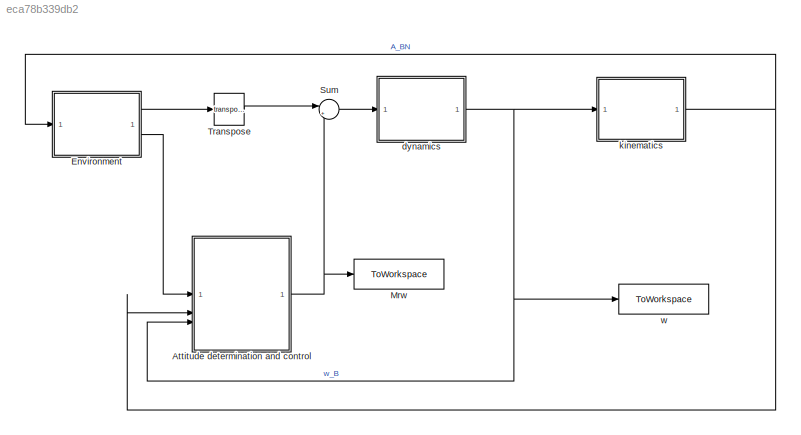
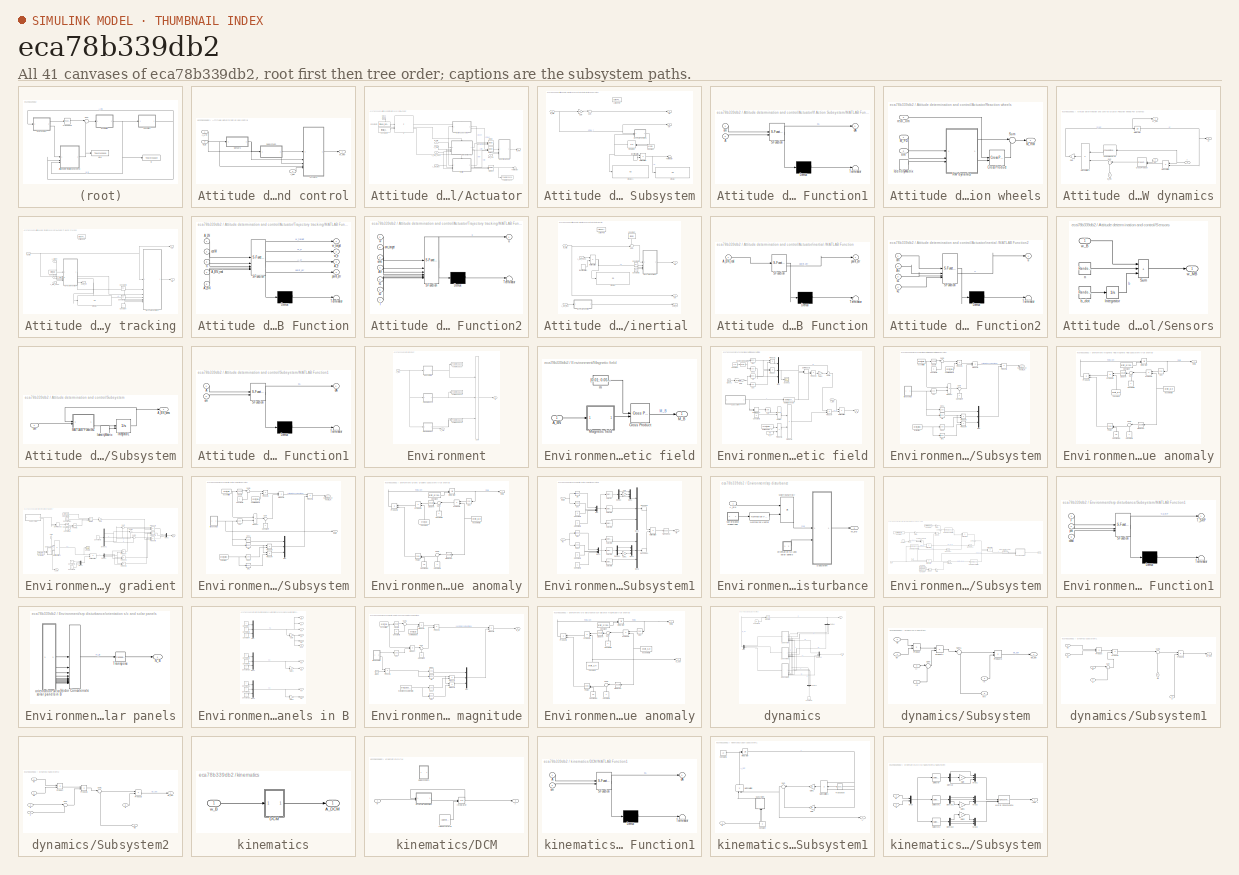
[diagram: thumbnail index - all 41 canvases of the model, root first then tree order]
MODEL slx_eca78b339db2
KIND model
CONFIG AbsTol = auto
CONFIG EnableMultiTasking = off
CONFIG FixedStep = 1
CONFIG MaxStep = auto
CONFIG MinStep = auto
CONFIG RelTol = 1e-9
CONFIG SampleTimeConstraint = Unconstrained
CONFIG SolverName = VariableStepAuto
CONFIG StartTime = 0.0
CONFIG StopTime = orbit_E.T
BLOCK [SubSystem] Attitude determination and control
BLOCK [Inport] Attitude determination and control/A_BN
  Port = 2
BLOCK [Inport] Attitude determination and control/A_L//N'
BLOCK [SubSystem] Attitude determination and control/Actuator
BLOCK [Inport] Attitude determination and control/Actuator/A_BN_real
  NameLocation = left
  Port = 5
BLOCK [Inport] Attitude determination and control/Actuator/A_BN_sens
  NameLocation = left
  Port = 3
BLOCK [Inport] Attitude determination and control/Actuator/A_L//N'
  NameLocation = left
BLOCK [Clock] Attitude determination and control/Actuator/Clock
  DisplayTime = on
BLOCK [Constant] Attitude determination and control/Actuator/Constant2
  Value = time.de_tumble
BLOCK [Constant] Attitude determination and control/Actuator/Constant3
  Value = time.traj_track
BLOCK [If] Attitude determination and control/Actuator/If
  ElseIfExpressions = u1 > u2 & u1 <= u3
  IfExpression = u1 <= u2
  NumInputs = 3
  ZeroCross = off
BLOCK [SubSystem] Attitude determination and control/Actuator/If Action Subsystem
  TreatAsAtomicUnit = on
BLOCK [ActionPort] Attitude determination and control/Actuator/If Action Subsystem/Action Port
  ActionPortLabel = if(u1 <= u2)
BLOCK [Constant] Attitude determination and control/Actuator/If Action Subsystem/Constant
  NameLocation = top
  SampleTime = -1
  Value = eye(3)
BLOCK [Display] Attitude determination and control/Actuator/If Action Subsystem/Display
  Decimation = 1
BLOCK [Display] Attitude determination and control/Actuator/If Action Subsystem/Display1
  Decimation = 1
BLOCK [Gain] Attitude determination and control/Actuator/If Action Subsystem/Gain
  Gain = -k1
BLOCK [IdentityMatrix] Attitude determination and control/Actuator/If Action Subsystem/IdentityMatrix1
  OutputDimensions = 3
  SampleTime = -1
BLOCK [Integrator] Attitude determination and control/Actuator/If Action Subsystem/Integrator1
  InitialConditionSource = external
  NameLocation = top
BLOCK [SubSystem] Attitude determination and control/Actuator/If Action Subsystem/MATLAB Function1
  ErrorFcn = Stateflow.Translate.translate
  LibrarySourceBlock = simulink/User-Defined\nFunctions/MATLAB Function
  PermitHierarchicalResolution = ExplicitOnly
  SFBlockType = MATLAB Function
  TreatAsAtomicUnit = on
BLOCK [Demux] Attitude determination and control/Actuator/If Action Subsystem/MATLAB Function1/ Demux 
  Outputs = 1
BLOCK [S-Function] Attitude determination and control/Actuator/If Action Subsystem/MATLAB Function1/ SFunction 
  EnableBusSupport = on
  FunctionName = sf_sfun
  PortCounts = [2 2]
  SFcnIsStateOwnerBlock = off
  SFunctionDeploymentMode = off
  Tag = Stateflow S-Function 2
BLOCK [Terminator] Attitude determination and control/Actuator/If Action Subsystem/MATLAB Function1/ Terminator 
BLOCK [Inport] Attitude determination and control/Actuator/If Action Subsystem/MATLAB Function1/A
  Port = 2
BLOCK [Outport] Attitude determination and control/Actuator/If Action Subsystem/MATLAB Function1/dA
BLOCK [Inport] Attitude determination and control/Actuator/If Action Subsystem/MATLAB Function1/om
BLOCK [Product] Attitude determination and control/Actuator/If Action Subsystem/MatrixMultiply
  Multiplication = Matrix(*)
BLOCK [Outport] Attitude determination and control/Actuator/If Action Subsystem/Mc
BLOCK [Sum] Attitude determination and control/Actuator/If Action Subsystem/Sum
  Inputs = |++
BLOCK [Terminator] Attitude determination and control/Actuator/If Action Subsystem/Terminator
BLOCK [Outport] Attitude determination and control/Actuator/If Action Subsystem/om
  Port = 2
BLOCK [Inport] Attitude determination and control/Actuator/If Action Subsystem/w_MB
BLOCK [Outport] Attitude determination and control/Actuator/M_RW
  NameLocation = top
BLOCK [Merge] Attitude determination and control/Actuator/Merge
  Inputs = 3
BLOCK [Merge] Attitude determination and control/Actuator/Merge1
  Inputs = 3
BLOCK [Merge] Attitude determination and control/Actuator/Merge2
BLOCK [SubSystem] Attitude determination and control/Actuator/Reaction wheels
BLOCK [Reference] Attitude determination and control/Actuator/Reaction wheels/Cross Product  REF=matrix_library/Cross Product
  LibrarySourceBlock = simulink/Matrix\nOperations/Cross Product
  SourceBlock = matrix_library/Cross Product
  SourceType = CrossProduct
BLOCK [IdentityMatrix] Attitude determination and control/Actuator/Reaction wheels/IdentityMatrix
  OutputDimensions = 3
BLOCK [Inport] Attitude determination and control/Actuator/Reaction wheels/M_PD
BLOCK [Outport] Attitude determination and control/Actuator/Reaction wheels/M_RW
BLOCK [SubSystem] Attitude determination and control/Actuator/Reaction wheels/RW dynamics
BLOCK [Inport] Attitude determination and control/Actuator/Reaction wheels/RW dynamics/A
  NameLocation = top
  Port = 3
BLOCK [Reference] Attitude determination and control/Actuator/Reaction wheels/RW dynamics/Cross Product  REF=matrix_library/Cross Product
  LibrarySourceBlock = simulink/Matrix\nOperations/Cross Product
  NameLocation = top
  SourceBlock = matrix_library/Cross Product
  SourceType = CrossProduct
BLOCK [Gain] Attitude determination and control/Actuator/Reaction wheels/RW dynamics/Gain
  Gain = -1
  NameLocation = top
BLOCK [Integrator] Attitude determination and control/Actuator/Reaction wheels/RW dynamics/Integrator
BLOCK [Inport] Attitude determination and control/Actuator/Reaction wheels/RW dynamics/M_PD
  NameLocation = right
BLOCK [Product] Attitude determination and control/Actuator/Reaction wheels/RW dynamics/MatrixMultiply
  Multiplication = Matrix(*)
  NameLocation = top
BLOCK [Product] Attitude determination and control/Actuator/Reaction wheels/RW dynamics/MatrixMultiply1
  Multiplication = Matrix(*)
  NameLocation = top
BLOCK [Reference] Attitude determination and control/Actuator/Reaction wheels/RW dynamics/Pseudoinverse  REF=dspinverses/Pseudoinverse
  NameLocation = top
  SourceBlock = dspinverses/Pseudoinverse
  SourceType = Pseudoinverse
BLOCK [Sum] Attitude determination and control/Actuator/Reaction wheels/RW dynamics/Sum
  Inputs = |++
  NameLocation = top
BLOCK [Outport] Attitude determination and control/Actuator/Reaction wheels/RW dynamics/hr
  Port = 2
BLOCK [Outport] Attitude determination and control/Actuator/Reaction wheels/RW dynamics/hr_dot
BLOCK [Inport] Attitude determination and control/Actuator/Reaction wheels/RW dynamics/om
  NameLocation = top
  Port = 2
BLOCK [Sum] Attitude determination and control/Actuator/Reaction wheels/Sum
  Inputs = |--
BLOCK [Inport] Attitude determination and control/Actuator/Reaction wheels/om
  Port = 2
BLOCK [Inport] Attitude determination and control/Actuator/Reaction wheels/real_om
  Port = 3
BLOCK [Terminator] Attitude determination and control/Actuator/Terminator
BLOCK [ToWorkspace] Attitude determination and control/Actuator/To Workspace
  FixptAsFi = on
  MaxDataPoints = inf
  SampleTime = -1
  VariableName = point_err
BLOCK [SubSystem] Attitude determination and control/Actuator/Trajectory tracking
  TreatAsAtomicUnit = on
BLOCK [Inport] Attitude determination and control/Actuator/Trajectory tracking/A_BN_real
  Port = 3
BLOCK [Inport] Attitude determination and control/Actuator/Trajectory tracking/A_BN_sens
  Port = 4
BLOCK [Inport] Attitude determination and control/Actuator/Trajectory tracking/A_target
  Port = 2
BLOCK [ActionPort] Attitude determination and control/Actuator/Trajectory tracking/Action Port
  ActionPortLabel = elseif(u1 > u2 & u1 <= u3)
BLOCK [Constant] Attitude determination and control/Actuator/Trajectory tracking/Constant
  Value = I
BLOCK [Constant] Attitude determination and control/Actuator/Trajectory tracking/Constant1
  Value = orbit_E.n
BLOCK [Constant] Attitude determination and control/Actuator/Trajectory tracking/Constant2
  Value = k1
BLOCK [Constant] Attitude determination and control/Actuator/Trajectory tracking/Constant3
  Value = k2
BLOCK [Display] Attitude determination and control/Actuator/Trajectory tracking/Display
  Decimation = 1
BLOCK [SubSystem] Attitude determination and control/Actuator/Trajectory tracking/MATLAB Function
  ErrorFcn = Stateflow.Translate.translate
  PermitHierarchicalResolution = ExplicitOnly
  SFBlockType = MATLAB Function
  TreatAsAtomicUnit = on
BLOCK [Demux] Attitude determination and control/Actuator/Trajectory tracking/MATLAB Function/ Demux 
  Outputs = 1
BLOCK [S-Function] Attitude determination and control/Actuator/Trajectory tracking/MATLAB Function/ SFunction 
  EnableBusSupport = on
  FunctionName = sf_sfun
  PortCounts = [5 5]
  SFcnIsStateOwnerBlock = off
  SFunctionDeploymentMode = off
  Tag = Stateflow S-Function 11
BLOCK [Terminator] Attitude determination and control/Actuator/Trajectory tracking/MATLAB Function/ Terminator 
BLOCK [Inport] Attitude determination and control/Actuator/Trajectory tracking/MATLAB Function/A_BN
  Port = 5
BLOCK [Inport] Attitude determination and control/Actuator/Trajectory tracking/MATLAB Function/A_BN_real
  Port = 4
BLOCK [Inport] Attitude determination and control/Actuator/Trajectory tracking/MATLAB Function/A_LN
BLOCK [Outport] Attitude determination and control/Actuator/Trajectory tracking/MATLAB Function/A_e
  Port = 3
BLOCK [Inport] Attitude determination and control/Actuator/Trajectory tracking/MATLAB Function/estW
  Port = 2
BLOCK [Inport] Attitude determination and control/Actuator/Trajectory tracking/MATLAB Function/n
  Port = 3
BLOCK [Outport] Attitude determination and control/Actuator/Trajectory tracking/MATLAB Function/point_err
  Port = 4
BLOCK [Outport] Attitude determination and control/Actuator/Trajectory tracking/MATLAB Function/w_e
  Port = 2
BLOCK [Outport] Attitude determination and control/Actuator/Trajectory tracking/MATLAB Function/w_target
BLOCK [SubSystem] Attitude determination and control/Actuator/Trajectory tracking/MATLAB Function2
  ErrorFcn = Stateflow.Translate.translate
  LibrarySourceBlock = simulink/User-Defined\nFunctions/MATLAB Function
  PermitHierarchicalResolution = ExplicitOnly
  SFBlockType = MATLAB Function
  TreatAsAtomicUnit = on
BLOCK [Demux] Attitude determination and control/Actuator/Trajectory tracking/MATLAB Function2/ Demux 
  Outputs = 1
BLOCK [S-Function] Attitude determination and control/Actuator/Trajectory tracking/MATLAB Function2/ SFunction 
  EnableBusSupport = on
  FunctionName = sf_sfun
  PortCounts = [7 2]
  SFcnIsStateOwnerBlock = off
  SFunctionDeploymentMode = off
  Tag = Stateflow S-Function 8
BLOCK [Terminator] Attitude determination and control/Actuator/Trajectory tracking/MATLAB Function2/ Terminator 
BLOCK [Inport] Attitude determination and control/Actuator/Trajectory tracking/MATLAB Function2/Ae
  Port = 4
BLOCK [Inport] Attitude determination and control/Actuator/Trajectory tracking/MATLAB Function2/I
  Port = 7
BLOCK [Inport] Attitude determination and control/Actuator/Trajectory tracking/MATLAB Function2/k1
  Port = 5
BLOCK [Inport] Attitude determination and control/Actuator/Trajectory tracking/MATLAB Function2/k2
  Port = 6
BLOCK [Inport] Attitude determination and control/Actuator/Trajectory tracking/MATLAB Function2/om_target
  Port = 2
BLOCK [Inport] Attitude determination and control/Actuator/Trajectory tracking/MATLAB Function2/ome
  Port = 3
BLOCK [Outport] Attitude determination and control/Actuator/Trajectory tracking/MATLAB Function2/u
BLOCK [Inport] Attitude determination and control/Actuator/Trajectory tracking/MATLAB Function2/w
BLOCK [Outport] Attitude determination and control/Actuator/Trajectory tracking/Mc
BLOCK [Outport] Attitude determination and control/Actuator/Trajectory tracking/om
  Port = 2
BLOCK [Outport] Attitude determination and control/Actuator/Trajectory tracking/point_err
  Port = 3
BLOCK [Inport] Attitude determination and control/Actuator/Trajectory tracking/w_MB
BLOCK [Inport] Attitude determination and control/Actuator/W_MB
  NameLocation = left
  Port = 2
BLOCK [SubSystem] Attitude determination and control/Actuator/inertial 
  TreatAsAtomicUnit = on
BLOCK [Inport] Attitude determination and control/Actuator/inertial /A_BN_real
  Port = 2
BLOCK [Inport] Attitude determination and control/Actuator/inertial /A_BN_sens
  Port = 3
BLOCK [ActionPort] Attitude determination and control/Actuator/inertial /Action Port
  ActionPortLabel = else
BLOCK [Constant] Attitude determination and control/Actuator/inertial /Constant
  NameLocation = left
  Value = [0 0 0]
BLOCK [Constant] Attitude determination and control/Actuator/inertial /Constant1
  Value = k1
BLOCK [Constant] Attitude determination and control/Actuator/inertial /Constant2
  Value = k2
BLOCK [Display] Attitude determination and control/Actuator/inertial /Display
  Decimation = 1
BLOCK [IdentityMatrix] Attitude determination and control/Actuator/inertial /IdentityMatrix1
  OutputDimensions = 3
  SampleTime = -1
BLOCK [SubSystem] Attitude determination and control/Actuator/inertial /MATLAB Function
  ErrorFcn = Stateflow.Translate.translate
  LibrarySourceBlock = simulink/User-Defined\nFunctions/MATLAB Function
  PermitHierarchicalResolution = ExplicitOnly
  SFBlockType = MATLAB Function
  TreatAsAtomicUnit = on
BLOCK [Demux] Attitude determination and control/Actuator/inertial /MATLAB Function/ Demux 
  Outputs = 1
BLOCK [S-Function] Attitude determination and control/Actuator/inertial /MATLAB Function/ SFunction 
  EnableBusSupport = on
  FunctionName = sf_sfun
  PortCounts = [1 2]
  SFcnIsStateOwnerBlock = off
  SFunctionDeploymentMode = off
  Tag = Stateflow S-Function 4
BLOCK [Terminator] Attitude determination and control/Actuator/inertial /MATLAB Function/ Terminator 
BLOCK [Inport] Attitude determination and control/Actuator/inertial /MATLAB Function/A_BN_real
BLOCK [Outport] Attitude determination and control/Actuator/inertial /MATLAB Function/point_err
BLOCK [SubSystem] Attitude determination and control/Actuator/inertial /MATLAB Function2
  ErrorFcn = Stateflow.Translate.translate
  LibrarySourceBlock = simulink/User-Defined\nFunctions/MATLAB Function
  PermitHierarchicalResolution = ExplicitOnly
  SFBlockType = MATLAB Function
  TreatAsAtomicUnit = on
BLOCK [Demux] Attitude determination and control/Actuator/inertial /MATLAB Function2/ Demux 
  Outputs = 1
BLOCK [S-Function] Attitude determination and control/Actuator/inertial /MATLAB Function2/ SFunction 
  EnableBusSupport = on
  FunctionName = sf_sfun
  PortCounts = [4 2]
  SFcnIsStateOwnerBlock = off
  SFunctionDeploymentMode = off
  Tag = Stateflow S-Function 10
BLOCK [Terminator] Attitude determination and control/Actuator/inertial /MATLAB Function2/ Terminator 
BLOCK [Inport] Attitude determination and control/Actuator/inertial /MATLAB Function2/Ae
  Port = 2
BLOCK [Inport] Attitude determination and control/Actuator/inertial /MATLAB Function2/k1
  Port = 3
BLOCK [Inport] Attitude determination and control/Actuator/inertial /MATLAB Function2/k2
  Port = 4
BLOCK [Inport] Attitude determination and control/Actuator/inertial /MATLAB Function2/om
BLOCK [Outport] Attitude determination and control/Actuator/inertial /MATLAB Function2/u
BLOCK [Product] Attitude determination and control/Actuator/inertial /MatrixMultiply
  Multiplication = Matrix(*)
BLOCK [Outport] Attitude determination and control/Actuator/inertial /Mc
BLOCK [Sum] Attitude determination and control/Actuator/inertial /Sum
  Inputs = -+|
BLOCK [Outport] Attitude determination and control/Actuator/inertial /om
  Port = 2
BLOCK [Outport] Attitude determination and control/Actuator/inertial /point_err
  Port = 3
BLOCK [Inport] Attitude determination and control/Actuator/inertial /w_MB
BLOCK [Inport] Attitude determination and control/Actuator/real_om
  Port = 4
BLOCK [Outport] Attitude determination and control/M_RW
BLOCK [SubSystem] Attitude determination and control/Sensors
BLOCK [Integrator] Attitude determination and control/Sensors/Integrator
BLOCK [Sum] Attitude determination and control/Sensors/Sum
  IconShape = rectangular
  Inputs = +++
BLOCK [RandomNumber] Attitude determination and control/Sensors/b_dot
  SampleTime = 1/100
  Seed = 2
  Variance = (gyro.RRW/(3600)^1.5)^2
BLOCK [RandomNumber] Attitude determination and control/Sensors/n
  SampleTime = 1/100
  Seed = 1
  Variance = (gyro.ARW/sqrt(3600))^2
BLOCK [Inport] Attitude determination and control/Sensors/w_B
BLOCK [Outport] Attitude determination and control/Sensors/w_MB
BLOCK [SubSystem] Attitude determination and control/Subsystem
BLOCK [Outport] Attitude determination and control/Subsystem/A_BN_sens
BLOCK [IdentityMatrix] Attitude determination and control/Subsystem/IdentityMatrix
  OutputDimensions = 3
  SampleTime = -1
BLOCK [Integrator] Attitude determination and control/Subsystem/Integrator1
  InitialConditionSource = external
BLOCK [SubSystem] Attitude determination and control/Subsystem/MATLAB Function1
  ErrorFcn = Stateflow.Translate.translate
  LibrarySourceBlock = simulink/User-Defined\nFunctions/MATLAB Function
  PermitHierarchicalResolution = ExplicitOnly
  SFBlockType = MATLAB Function
  TreatAsAtomicUnit = on
BLOCK [Demux] Attitude determination and control/Subsystem/MATLAB Function1/ Demux 
  Outputs = 1
BLOCK [S-Function] Attitude determination and control/Subsystem/MATLAB Function1/ SFunction 
  EnableBusSupport = on
  FunctionName = sf_sfun
  PortCounts = [2 2]
  SFcnIsStateOwnerBlock = off
  SFunctionDeploymentMode = off
  Tag = Stateflow S-Function 1
BLOCK [Terminator] Attitude determination and control/Subsystem/MATLAB Function1/ Terminator 
BLOCK [Inport] Attitude determination and control/Subsystem/MATLAB Function1/A
BLOCK [Outport] Attitude determination and control/Subsystem/MATLAB Function1/dA
BLOCK [Inport] Attitude determination and control/Subsystem/MATLAB Function1/om
  Port = 2
BLOCK [Inport] Attitude determination and control/Subsystem/om
BLOCK [Inport] Attitude determination and control/w_B
  Port = 3
BLOCK [SubSystem] Environment
BLOCK [Inport] Environment/A_BN
BLOCK [Outport] Environment/A_L//N'
  NameLocation = right
  Port = 2
BLOCK [Outport] Environment/M
BLOCK [SubSystem] Environment/Magnetic field
BLOCK [Inport] Environment/Magnetic field/A_BN
BLOCK [Reference] Environment/Magnetic field/Cross Product  REF=matrix_library/Cross Product
  LibrarySourceBlock = simulink/Matrix\nOperations/Cross Product
  SourceBlock = matrix_library/Cross Product
  SourceType = CrossProduct
BLOCK [Outport] Environment/Magnetic field/M_B
BLOCK [SubSystem] Environment/Magnetic field/Magnetic field
BLOCK [Inport] Environment/Magnetic field/Magnetic field/A_BN
BLOCK [Clock] Environment/Magnetic field/Magnetic field/Clock1
BLOCK [Constant] Environment/Magnetic field/Magnetic field/Constant
  Value = 11.5
BLOCK [Constant] Environment/Magnetic field/Magnetic field/Constant2
  Value = 3
BLOCK [Trigonometry] Environment/Magnetic field/Magnetic field/Cos
  Operator = cos
BLOCK [Trigonometry] Environment/Magnetic field/Magnetic field/Cos1
  Operator = cos
BLOCK [Reference] Environment/Magnetic field/Magnetic field/Degrees to Radians  REF=simulink_extras/Transformations/Degrees to
Radians
  SourceBlock = simulink_extras/Transformations/Degrees to\nRadians
  SourceType = DegreesToRadians
BLOCK [DotProduct] Environment/Magnetic field/Magnetic field/Dot Product
  OutDataTypeStr = Inherit: Inherit via internal rule
BLOCK [DotProduct] Environment/Magnetic field/Magnetic field/Dot Product1
  OutDataTypeStr = Inherit: Inherit via internal rule
BLOCK [Constant] Environment/Magnetic field/Magnetic field/Earth Radius^3
  NameLocation = left
  Value = (orbit_E.R)^3
BLOCK [Gain] Environment/Magnetic field/Magnetic field/Gain
  Gain = orbit_E.w
BLOCK [Gain] Environment/Magnetic field/Magnetic field/Gain1
  Gain = 3
BLOCK [Constant] Environment/Magnetic field/Magnetic field/H_0
  NameLocation = left
  Value = H0
BLOCK [Product] Environment/Magnetic field/Magnetic field/MatrixMultiply
  Multiplication = Matrix(*)
BLOCK [Mux] Environment/Magnetic field/Magnetic field/Mux
  DisplayOption = bar
  Inputs = 3
BLOCK [Reference] Environment/Magnetic field/Magnetic field/Normalize Vector  REF=vrlib/Utilities/Normalize Vector
  SourceBlock = vrlib/Utilities/Normalize Vector
  SourceType = Normalize Vector
BLOCK [Math] Environment/Magnetic field/Magnetic field/Power
  Operator = pow
BLOCK [Product] Environment/Magnetic field/Magnetic field/Product
BLOCK [Product] Environment/Magnetic field/Magnetic field/Product1
BLOCK [Product] Environment/Magnetic field/Magnetic field/Product3
BLOCK [Product] Environment/Magnetic field/Magnetic field/Product5
BLOCK [Product] Environment/Magnetic field/Magnetic field/Product6
  Inputs = /*
BLOCK [Product] Environment/Magnetic field/Magnetic field/Product7
BLOCK [Scope] Environment/Magnetic field/Magnetic field/Scope2
  Floating = off
  NumInputPorts = 1
  ScopeSpecificationString = Simulink.scopes.TimeScopeBlockCfg('CurrentConfiguration', extmgr.ConfigurationSet(extmgr.Configuration('Core','General UI',true),extmgr.Configuration('Core','Source UI',true),extmgr.Configuration('Sources','WiredSimulink',true,'DataLoggingVariableName','ScopeData8'),extmgr.Configuration('Visuals','Time Domain',true,'SerializedDisplays',{struct('MinYLimReal','-0.12249','MaxYLimReal','1.10242','YLab...<+1438ch>
BLOCK [Trigonometry] Environment/Magnetic field/Magnetic field/Sin
BLOCK [Trigonometry] Environment/Magnetic field/Magnetic field/Sin1
BLOCK [Sqrt] Environment/Magnetic field/Magnetic field/Sqrt
BLOCK [SubSystem] Environment/Magnetic field/Magnetic field/Subsystem
BLOCK [Constant] Environment/Magnetic field/Magnetic field/Subsystem/Constant7
  NameLocation = right
BLOCK [Constant] Environment/Magnetic field/Magnetic field/Subsystem/Constant8
BLOCK [Trigonometry] Environment/Magnetic field/Magnetic field/Subsystem/Cos
  Operator = cos
BLOCK [Trigonometry] Environment/Magnetic field/Magnetic field/Subsystem/Cos1
  Operator = cos
BLOCK [Trigonometry] Environment/Magnetic field/Magnetic field/Subsystem/Cos2
  Operator = cos
BLOCK [Mux] Environment/Magnetic field/Magnetic field/Subsystem/Mux
  DisplayOption = bar
  Inputs = 3
BLOCK [Product] Environment/Magnetic field/Magnetic field/Subsystem/Product
BLOCK [Product] Environment/Magnetic field/Magnetic field/Subsystem/Product1
BLOCK [Product] Environment/Magnetic field/Magnetic field/Subsystem/Product2
  Inputs = */
BLOCK [Product] Environment/Magnetic field/Magnetic field/Subsystem/Product3
BLOCK [Product] Environment/Magnetic field/Magnetic field/Subsystem/Product4
BLOCK [Product] Environment/Magnetic field/Magnetic field/Subsystem/Product5
BLOCK [Trigonometry] Environment/Magnetic field/Magnetic field/Subsystem/Sin
BLOCK [Trigonometry] Environment/Magnetic field/Magnetic field/Subsystem/Sin1
BLOCK [Math] Environment/Magnetic field/Magnetic field/Subsystem/Square
  Operator = square
BLOCK [Sum] Environment/Magnetic field/Magnetic field/Subsystem/Sum
  Inputs = |++
BLOCK [Sum] Environment/Magnetic field/Magnetic field/Subsystem/Sum1
  Inputs = |-+
BLOCK [Outport] Environment/Magnetic field/Magnetic field/Subsystem/earth distance vector_N
BLOCK [Constant] Environment/Magnetic field/Magnetic field/Subsystem/eccentricity
  Value = orbit_E.e
BLOCK [Constant] Environment/Magnetic field/Magnetic field/Subsystem/inclination
  Value = orbit_E.inc
BLOCK [Constant] Environment/Magnetic field/Magnetic field/Subsystem/semimajor axis
  Value = orbit_E.a
BLOCK [SubSystem] Environment/Magnetic field/Magnetic field/Subsystem/true anomaly
BLOCK [Constant] Environment/Magnetic field/Magnetic field/Subsystem/true anomaly/Constant
  Value = orbit_E.theta0
BLOCK [Constant] Environment/Magnetic field/Magnetic field/Subsystem/true anomaly/Constant1
  NameLocation = right
  Value = orbit_E.n
BLOCK [Constant] Environment/Magnetic field/Magnetic field/Subsystem/true anomaly/Constant10
  NameLocation = right
  Value = 3/2
BLOCK [Constant] Environment/Magnetic field/Magnetic field/Subsystem/true anomaly/Constant8
  NameLocation = right
BLOCK [Constant] Environment/Magnetic field/Magnetic field/Subsystem/true anomaly/Constant9
  NameLocation = right
BLOCK [Trigonometry] Environment/Magnetic field/Magnetic field/Subsystem/true anomaly/Cos
  NameLocation = top
  Operator = cos
BLOCK [Integrator] Environment/Magnetic field/Magnetic field/Subsystem/true anomaly/Integrator
  InitialConditionSource = external
BLOCK [Math] Environment/Magnetic field/Magnetic field/Subsystem/true anomaly/Power
  NameLocation = top
  Operator = pow
BLOCK [Product] Environment/Magnetic field/Magnetic field/Subsystem/true anomaly/Product1
  NameLocation = top
BLOCK [Product] Environment/Magnetic field/Magnetic field/Subsystem/true anomaly/Product2
  NameLocation = top
BLOCK [Product] Environment/Magnetic field/Magnetic field/Subsystem/true anomaly/Product3
  Inputs = */
  NameLocation = top
BLOCK [Math] Environment/Magnetic field/Magnetic field/Subsystem/true anomaly/Square
  NameLocation = top
  Operator = square
BLOCK [Math] Environment/Magnetic field/Magnetic field/Subsystem/true anomaly/Square1
  NameLocation = top
  Operator = square
BLOCK [Sum] Environment/Magnetic field/Magnetic field/Subsystem/true anomaly/Sum
  Inputs = |++
  NameLocation = top
BLOCK [Sum] Environment/Magnetic field/Magnetic field/Subsystem/true anomaly/Sum1
  Inputs = |-+
  NameLocation = top
BLOCK [Constant] Environment/Magnetic field/Magnetic field/Subsystem/true anomaly/eccentricity
  Value = orbit_E.e
BLOCK [Outport] Environment/Magnetic field/Magnetic field/Subsystem/true anomaly/theta
BLOCK [Sum] Environment/Magnetic field/Magnetic field/Sum1
  Inputs = -+|
BLOCK [Outport] Environment/Magnetic field/Magnetic field/b_B
BLOCK [Constant] Environment/Magnetic field/m
  Value = [0.01; 0.05; 0.01]
BLOCK [Sum] Environment/Sum
  IconShape = rectangular
  Inputs = +++
BLOCK [ToWorkspace] Environment/To Workspace
  Commented = on
  FixptAsFi = on
  MaxDataPoints = inf
  SampleTime = -1
  SaveFormat = Timeseries
  VariableName = magn
BLOCK [ToWorkspace] Environment/To Workspace1
  Commented = on
  FixptAsFi = on
  MaxDataPoints = inf
  SampleTime = -1
  SaveFormat = Timeseries
  VariableName = srp
BLOCK [ToWorkspace] Environment/To Workspace2
  Commented = on
  FixptAsFi = on
  MaxDataPoints = inf
  SampleTime = -1
  SaveFormat = Timeseries
  VariableName = grav
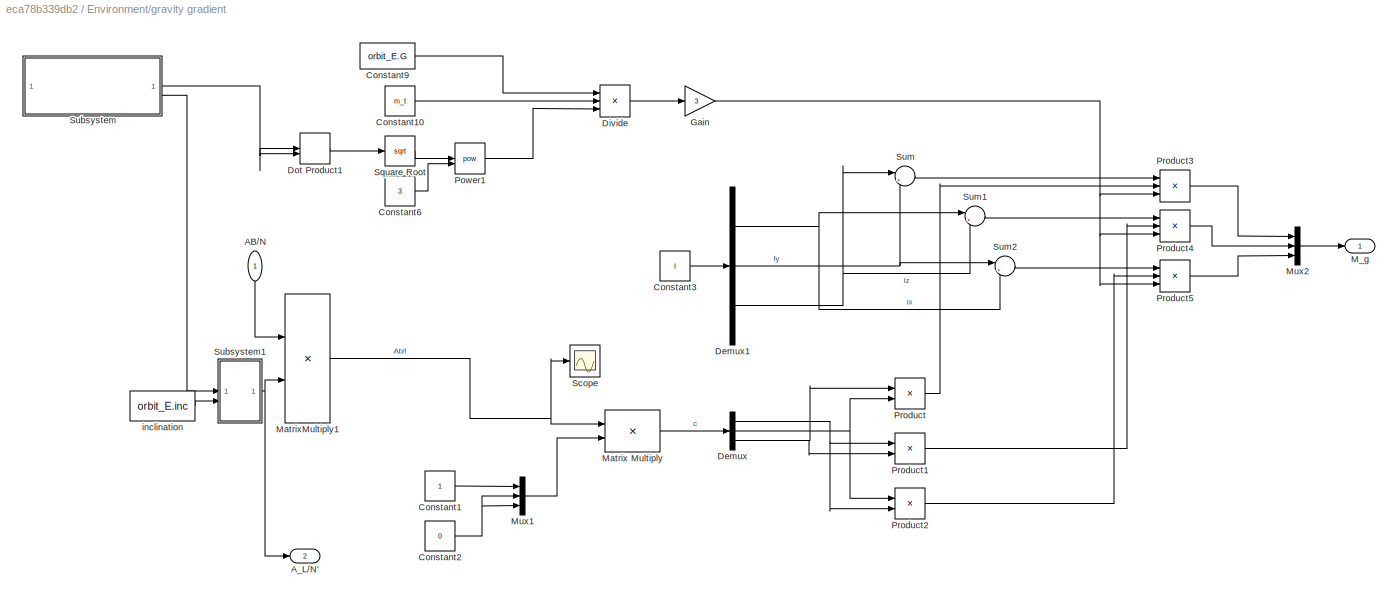
BLOCK [SubSystem] Environment/gravity gradient
BLOCK [Inport] Environment/gravity gradient/AB//N
  NameLocation = left
BLOCK [Outport] Environment/gravity gradient/A_L//N'
  Port = 2
BLOCK [Constant] Environment/gravity gradient/Constant1
BLOCK [Constant] Environment/gravity gradient/Constant10
  Value = m_t
BLOCK [Constant] Environment/gravity gradient/Constant2
  Value = 0
BLOCK [Constant] Environment/gravity gradient/Constant3
  Value = I
BLOCK [Constant] Environment/gravity gradient/Constant6
  Value = 3
BLOCK [Constant] Environment/gravity gradient/Constant9
  Value = orbit_E.G
BLOCK [Demux] Environment/gravity gradient/Demux
  Outputs = 3
BLOCK [Demux] Environment/gravity gradient/Demux1
  Outputs = 3
BLOCK [Product] Environment/gravity gradient/Divide
  Inputs = **/
BLOCK [DotProduct] Environment/gravity gradient/Dot Product1
  OutDataTypeStr = Inherit: Inherit via internal rule
BLOCK [Gain] Environment/gravity gradient/Gain
  Gain = 3
BLOCK [Outport] Environment/gravity gradient/M_g
BLOCK [Product] Environment/gravity gradient/Matrix Multiply
  Multiplication = Matrix(*)
BLOCK [Product] Environment/gravity gradient/MatrixMultiply1
  Multiplication = Matrix(*)
BLOCK [Mux] Environment/gravity gradient/Mux1
  DisplayOption = bar
  Inputs = 3
BLOCK [Mux] Environment/gravity gradient/Mux2
  DisplayOption = bar
  Inputs = 3
BLOCK [Math] Environment/gravity gradient/Power1
  Operator = pow
BLOCK [Product] Environment/gravity gradient/Product
BLOCK [Product] Environment/gravity gradient/Product1
BLOCK [Product] Environment/gravity gradient/Product2
BLOCK [Product] Environment/gravity gradient/Product3
  Inputs = 3
BLOCK [Product] Environment/gravity gradient/Product4
  Inputs = 3
BLOCK [Product] Environment/gravity gradient/Product5
  Inputs = 3
BLOCK [Scope] Environment/gravity gradient/Scope
  Floating = off
  NumInputPorts = 1
  ScopeSpecificationString = Simulink.scopes.TimeScopeBlockCfg('CurrentConfiguration', extmgr.ConfigurationSet(extmgr.Configuration('Core','General UI',true),extmgr.Configuration('Core','Source UI',true),extmgr.Configuration('Sources','WiredSimulink',true,'DataLoggingVariableName','ScopeData1'),extmgr.Configuration('Visuals','Time Domain',true,'SerializedDisplays',{struct('MinYLimReal','-1.24373','MaxYLimReal','1.2493','YLabe...<+1433ch>
BLOCK [Sqrt] Environment/gravity gradient/Square Root
BLOCK [SubSystem] Environment/gravity gradient/Subsystem
BLOCK [Constant] Environment/gravity gradient/Subsystem/Constant7
  NameLocation = right
BLOCK [Constant] Environment/gravity gradient/Subsystem/Constant8
BLOCK [Trigonometry] Environment/gravity gradient/Subsystem/Cos
  Operator = cos
BLOCK [Trigonometry] Environment/gravity gradient/Subsystem/Cos1
  Operator = cos
BLOCK [Trigonometry] Environment/gravity gradient/Subsystem/Cos2
  Operator = cos
BLOCK [Mux] Environment/gravity gradient/Subsystem/Mux
  DisplayOption = bar
  Inputs = 3
BLOCK [Product] Environment/gravity gradient/Subsystem/Product
BLOCK [Product] Environment/gravity gradient/Subsystem/Product1
BLOCK [Product] Environment/gravity gradient/Subsystem/Product2
  Inputs = */
BLOCK [Product] Environment/gravity gradient/Subsystem/Product3
BLOCK [Product] Environment/gravity gradient/Subsystem/Product4
BLOCK [Product] Environment/gravity gradient/Subsystem/Product5
BLOCK [Trigonometry] Environment/gravity gradient/Subsystem/Sin
BLOCK [Trigonometry] Environment/gravity gradient/Subsystem/Sin1
BLOCK [Math] Environment/gravity gradient/Subsystem/Square
  Operator = square
BLOCK [Sum] Environment/gravity gradient/Subsystem/Sum
  Inputs = |++
BLOCK [Sum] Environment/gravity gradient/Subsystem/Sum1
  Inputs = |-+
BLOCK [Outport] Environment/gravity gradient/Subsystem/earth distance vector_N
BLOCK [Constant] Environment/gravity gradient/Subsystem/eccentricity
  Value = orbit_E.e
BLOCK [Constant] Environment/gravity gradient/Subsystem/inclination
  Value = orbit_E.inc
BLOCK [Constant] Environment/gravity gradient/Subsystem/semimajor axis
  Value = orbit_E.a
BLOCK [Outport] Environment/gravity gradient/Subsystem/theta
  Port = 2
BLOCK [SubSystem] Environment/gravity gradient/Subsystem/true anomaly
BLOCK [Constant] Environment/gravity gradient/Subsystem/true anomaly/Constant
  Value = orbit_E.theta0
BLOCK [Constant] Environment/gravity gradient/Subsystem/true anomaly/Constant1
  NameLocation = right
  Value = orbit_E.n
BLOCK [Constant] Environment/gravity gradient/Subsystem/true anomaly/Constant10
  NameLocation = right
  Value = 3/2
BLOCK [Constant] Environment/gravity gradient/Subsystem/true anomaly/Constant8
  NameLocation = right
BLOCK [Constant] Environment/gravity gradient/Subsystem/true anomaly/Constant9
  NameLocation = right
BLOCK [Trigonometry] Environment/gravity gradient/Subsystem/true anomaly/Cos
  NameLocation = top
  Operator = cos
BLOCK [Integrator] Environment/gravity gradient/Subsystem/true anomaly/Integrator
  InitialConditionSource = external
BLOCK [Math] Environment/gravity gradient/Subsystem/true anomaly/Power
  NameLocation = top
  Operator = pow
BLOCK [Product] Environment/gravity gradient/Subsystem/true anomaly/Product1
  NameLocation = top
BLOCK [Product] Environment/gravity gradient/Subsystem/true anomaly/Product2
  NameLocation = top
BLOCK [Product] Environment/gravity gradient/Subsystem/true anomaly/Product3
  Inputs = */
  NameLocation = top
BLOCK [Math] Environment/gravity gradient/Subsystem/true anomaly/Square
  NameLocation = top
  Operator = square
BLOCK [Math] Environment/gravity gradient/Subsystem/true anomaly/Square1
  NameLocation = top
  Operator = square
BLOCK [Sum] Environment/gravity gradient/Subsystem/true anomaly/Sum
  Inputs = |++
  NameLocation = top
BLOCK [Sum] Environment/gravity gradient/Subsystem/true anomaly/Sum1
  Inputs = |-+
  NameLocation = top
BLOCK [Constant] Environment/gravity gradient/Subsystem/true anomaly/eccentricity
  Value = orbit_E.e
BLOCK [Outport] Environment/gravity gradient/Subsystem/true anomaly/theta
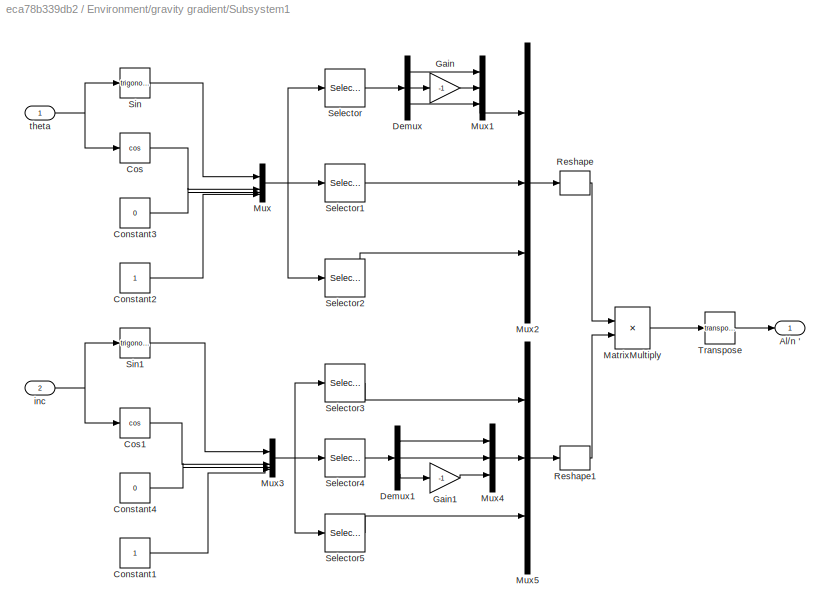
BLOCK [SubSystem] Environment/gravity gradient/Subsystem1
BLOCK [Outport] Environment/gravity gradient/Subsystem1/Al//n '
BLOCK [Constant] Environment/gravity gradient/Subsystem1/Constant1
BLOCK [Constant] Environment/gravity gradient/Subsystem1/Constant2
BLOCK [Constant] Environment/gravity gradient/Subsystem1/Constant3
  Value = 0
BLOCK [Constant] Environment/gravity gradient/Subsystem1/Constant4
  Value = 0
BLOCK [Trigonometry] Environment/gravity gradient/Subsystem1/Cos
  Operator = cos
BLOCK [Trigonometry] Environment/gravity gradient/Subsystem1/Cos1
  Operator = cos
BLOCK [Demux] Environment/gravity gradient/Subsystem1/Demux
  Outputs = 3
BLOCK [Demux] Environment/gravity gradient/Subsystem1/Demux1
  Outputs = 3
BLOCK [Gain] Environment/gravity gradient/Subsystem1/Gain
  Gain = -1
BLOCK [Gain] Environment/gravity gradient/Subsystem1/Gain1
  Gain = -1
BLOCK [Product] Environment/gravity gradient/Subsystem1/MatrixMultiply
  Multiplication = Matrix(*)
BLOCK [Mux] Environment/gravity gradient/Subsystem1/Mux
  DisplayOption = bar
BLOCK [Mux] Environment/gravity gradient/Subsystem1/Mux1
  DisplayOption = bar
  Inputs = 3
BLOCK [Mux] Environment/gravity gradient/Subsystem1/Mux2
  DisplayOption = bar
  Inputs = 3
BLOCK [Mux] Environment/gravity gradient/Subsystem1/Mux3
  DisplayOption = bar
BLOCK [Mux] Environment/gravity gradient/Subsystem1/Mux4
  DisplayOption = bar
  Inputs = 3
BLOCK [Mux] Environment/gravity gradient/Subsystem1/Mux5
  DisplayOption = bar
  Inputs = 3
BLOCK [Reshape] Environment/gravity gradient/Subsystem1/Reshape
  OutputDimensionality = Customize
  OutputDimensions = [3,3]
BLOCK [Reshape] Environment/gravity gradient/Subsystem1/Reshape1
  OutputDimensionality = Customize
  OutputDimensions = [3,3]
BLOCK [Selector] Environment/gravity gradient/Subsystem1/Selector
  IndexOptions = Index vector (dialog)
  Indices = [2 1 3]
  InputPortWidth = 4
  OutputSizes = 1
BLOCK [Selector] Environment/gravity gradient/Subsystem1/Selector1
  IndexOptions = Index vector (dialog)
  Indices = [1 2 3]
  InputPortWidth = 4
  OutputSizes = 1
BLOCK [Selector] Environment/gravity gradient/Subsystem1/Selector2
  IndexOptions = Index vector (dialog)
  Indices = [3 3 4]
  InputPortWidth = 4
  OutputSizes = 1
BLOCK [Selector] Environment/gravity gradient/Subsystem1/Selector3
  IndexOptions = Index vector (dialog)
  Indices = [4 3 3]
  InputPortWidth = 4
  OutputSizes = 1
BLOCK [Selector] Environment/gravity gradient/Subsystem1/Selector4
  IndexOptions = Index vector (dialog)
  Indices = [3 2 1]
  InputPortWidth = 4
  OutputSizes = 1
BLOCK [Selector] Environment/gravity gradient/Subsystem1/Selector5
  IndexOptions = Index vector (dialog)
  Indices = [3 1 2]
  InputPortWidth = 4
  OutputSizes = 1
BLOCK [Trigonometry] Environment/gravity gradient/Subsystem1/Sin
BLOCK [Trigonometry] Environment/gravity gradient/Subsystem1/Sin1
BLOCK [Math] Environment/gravity gradient/Subsystem1/Transpose
  Operator = transpose
BLOCK [Inport] Environment/gravity gradient/Subsystem1/inc
  Port = 2
BLOCK [Inport] Environment/gravity gradient/Subsystem1/theta
BLOCK [Sum] Environment/gravity gradient/Sum
  Inputs = |+-
BLOCK [Sum] Environment/gravity gradient/Sum1
  Inputs = |+-
BLOCK [Sum] Environment/gravity gradient/Sum2
  Inputs = |+-
BLOCK [Constant] Environment/gravity gradient/inclination
  Value = orbit_E.inc
BLOCK [SubSystem] Environment/srp disturbance
BLOCK [Inport] Environment/srp disturbance/A_BN
BLOCK [Outport] Environment/srp disturbance/M_srp
BLOCK [Product] Environment/srp disturbance/MatrixMultiply
  Multiplication = Matrix(*)
BLOCK [Reference] Environment/srp disturbance/Normalize Vector  REF=vrlib/Utilities/Normalize Vector
  SourceBlock = vrlib/Utilities/Normalize Vector
  SourceType = Normalize Vector
BLOCK [SubSystem] Environment/srp disturbance/Subsystem
BLOCK [Constant] Environment/srp disturbance/Subsystem/Constant
BLOCK [Constant] Environment/srp disturbance/Subsystem/Constant3
  Value = solarPanel.P
BLOCK [Constant] Environment/srp disturbance/Subsystem/Constant4
  Value = solarPanel.area
BLOCK [Constant] Environment/srp disturbance/Subsystem/Constant5
  Value = solarPanel.rho_s
BLOCK [Constant] Environment/srp disturbance/Subsystem/Constant6
  Value = solarPanel.rho_d
BLOCK [Reference] Environment/srp disturbance/Subsystem/Create Diagonal Matrix  REF=matrix_library/Create Diagonal
Matrix
  LibrarySourceBlock = simulink/Matrix\nOperations/Create Diagonal\nMatrix
  SourceBlock = matrix_library/Create Diagonal\nMatrix
  SourceType = Create Diagonal Matrix
BLOCK [Reference] Environment/srp disturbance/Subsystem/Create Diagonal Matrix1  REF=matrix_library/Create Diagonal
Matrix
  LibrarySourceBlock = simulink/Matrix\nOperations/Create Diagonal\nMatrix
  SourceBlock = matrix_library/Create Diagonal\nMatrix
  SourceType = Create Diagonal Matrix
BLOCK [Reference] Environment/srp disturbance/Subsystem/Create Diagonal Matrix2  REF=matrix_library/Create Diagonal
Matrix
  LibrarySourceBlock = simulink/Matrix\nOperations/Create Diagonal\nMatrix
  SourceBlock = matrix_library/Create Diagonal\nMatrix
  SourceType = Create Diagonal Matrix
BLOCK [Gain] Environment/srp disturbance/Subsystem/Gain
  Gain = -1
BLOCK [Gain] Environment/srp disturbance/Subsystem/Gain1
  Gain = 2
BLOCK [Gain] Environment/srp disturbance/Subsystem/Gain2
  Gain = 2/3
BLOCK [SubSystem] Environment/srp disturbance/Subsystem/MATLAB Function1
  ErrorFcn = Stateflow.Translate.translate
  LibrarySourceBlock = simulink/User-Defined\nFunctions/MATLAB Function
  PermitHierarchicalResolution = ExplicitOnly
  SFBlockType = MATLAB Function
  TreatAsAtomicUnit = on
BLOCK [Demux] Environment/srp disturbance/Subsystem/MATLAB Function1/ Demux 
  Outputs = 1
BLOCK [S-Function] Environment/srp disturbance/Subsystem/MATLAB Function1/ SFunction 
  EnableBusSupport = on
  FunctionName = sf_sfun
  PortCounts = [3 2]
  SFcnIsStateOwnerBlock = off
  SFunctionDeploymentMode = off
  Tag = Stateflow S-Function 5
BLOCK [Terminator] Environment/srp disturbance/Subsystem/MATLAB Function1/ Terminator 
BLOCK [Inport] Environment/srp disturbance/Subsystem/MATLAB Function1/F
BLOCK [Outport] Environment/srp disturbance/Subsystem/MATLAB Function1/T_SRP
BLOCK [Inport] Environment/srp disturbance/Subsystem/MATLAB Function1/cond
  Port = 3
BLOCK [Inport] Environment/srp disturbance/Subsystem/MATLAB Function1/pos
  Port = 2
BLOCK [Outport] Environment/srp disturbance/Subsystem/M_SRP
BLOCK [Product] Environment/srp disturbance/Subsystem/Matrix Multiply
  Multiplication = Matrix(*)
BLOCK [Product] Environment/srp disturbance/Subsystem/Matrix Multiply1
  Multiplication = Matrix(*)
BLOCK [Product] Environment/srp disturbance/Subsystem/Matrix Multiply3
  Multiplication = Matrix(*)
BLOCK [Product] Environment/srp disturbance/Subsystem/Matrix Multiply4
  Multiplication = Matrix(*)
BLOCK [Inport] Environment/srp disturbance/Subsystem/N_B
  NameLocation = top
  Port = 2
BLOCK [Product] Environment/srp disturbance/Subsystem/Product
BLOCK [Product] Environment/srp disturbance/Subsystem/Product1
BLOCK [Product] Environment/srp disturbance/Subsystem/Product3
BLOCK [Inport] Environment/srp disturbance/Subsystem/S_B
BLOCK [Sum] Environment/srp disturbance/Subsystem/Sum1
  Inputs = -+|
BLOCK [Sum] Environment/srp disturbance/Subsystem/Sum2
BLOCK [Sum] Environment/srp disturbance/Subsystem/Sum3
BLOCK [Math] Environment/srp disturbance/Subsystem/Transpose1
  Operator = transpose
BLOCK [Math] Environment/srp disturbance/Subsystem/Transpose2
  Operator = transpose
BLOCK [Concatenate] Environment/srp disturbance/Subsystem/Vector Concatenate
  ConcatenateDimension = 2
  Mode = Multidimensional array
  NumInputs = 3
BLOCK [Constant] Environment/srp disturbance/Subsystem/distance from the center of mass1
  Value = solarPanel.r
BLOCK [SubSystem] Environment/srp disturbance/orientation s//c and solar panels
  NameLocation = left
BLOCK [Outport] Environment/srp disturbance/orientation s//c and solar panels/N_B
BLOCK [Math] Environment/srp disturbance/orientation s//c and solar panels/Transpose
  Operator = transpose
BLOCK [Concatenate] Environment/srp disturbance/orientation s//c and solar panels/Vector Concatenate
  ConcatenateDimension = 2
  Mode = Multidimensional array
  NumInputs = 10
BLOCK [SubSystem] Environment/srp disturbance/orientation s//c and solar panels/orientation s//c and solar panels in B
  NameLocation = left
BLOCK [Constant] Environment/srp disturbance/orientation s//c and solar panels/orientation s//c and solar panels in B/Constant
BLOCK [Constant] Environment/srp disturbance/orientation s//c and solar panels/orientation s//c and solar panels in B/Constant10
  Value = 0
BLOCK [Constant] Environment/srp disturbance/orientation s//c and solar panels/orientation s//c and solar panels in B/Constant11
  Value = 0
BLOCK [Constant] Environment/srp disturbance/orientation s//c and solar panels/orientation s//c and solar panels in B/Constant12
  Value = 0
BLOCK [Constant] Environment/srp disturbance/orientation s//c and solar panels/orientation s//c and solar panels in B/Constant13
BLOCK [Constant] Environment/srp disturbance/orientation s//c and solar panels/orientation s//c and solar panels in B/Constant2
  Value = 0
BLOCK [Constant] Environment/srp disturbance/orientation s//c and solar panels/orientation s//c and solar panels in B/Constant7
  Value = 0
BLOCK [Constant] Environment/srp disturbance/orientation s//c and solar panels/orientation s//c and solar panels in B/Constant8
  Value = 0
BLOCK [Constant] Environment/srp disturbance/orientation s//c and solar panels/orientation s//c and solar panels in B/Constant9
BLOCK [Gain] Environment/srp disturbance/orientation s//c and solar panels/orientation s//c and solar panels in B/Gain
  Gain = -1
BLOCK [Gain] Environment/srp disturbance/orientation s//c and solar panels/orientation s//c and solar panels in B/Gain1
  Gain = -1
BLOCK [Gain] Environment/srp disturbance/orientation s//c and solar panels/orientation s//c and solar panels in B/Gain2
  Gain = -1
BLOCK [Mux] Environment/srp disturbance/orientation s//c and solar panels/orientation s//c and solar panels in B/Mux
  DisplayOption = bar
  Inputs = 3
BLOCK [Mux] Environment/srp disturbance/orientation s//c and solar panels/orientation s//c and solar panels in B/Mux1
  DisplayOption = bar
  Inputs = 3
BLOCK [Mux] Environment/srp disturbance/orientation s//c and solar panels/orientation s//c and solar panels in B/Mux2
  DisplayOption = bar
  Inputs = 3
BLOCK [Outport] Environment/srp disturbance/orientation s//c and solar panels/orientation s//c and solar panels in B/n1
BLOCK [Outport] Environment/srp disturbance/orientation s//c and solar panels/orientation s//c and solar panels in B/n10
  Port = 10
BLOCK [Outport] Environment/srp disturbance/orientation s//c and solar panels/orientation s//c and solar panels in B/n2
  Port = 2
BLOCK [Outport] Environment/srp disturbance/orientation s//c and solar panels/orientation s//c and solar panels in B/n3
  Port = 3
BLOCK [Outport] Environment/srp disturbance/orientation s//c and solar panels/orientation s//c and solar panels in B/n4
  Port = 4
BLOCK [Outport] Environment/srp disturbance/orientation s//c and solar panels/orientation s//c and solar panels in B/n5
  Port = 5
BLOCK [Outport] Environment/srp disturbance/orientation s//c and solar panels/orientation s//c and solar panels in B/n6
  Port = 6
BLOCK [Outport] Environment/srp disturbance/orientation s//c and solar panels/orientation s//c and solar panels in B/n7
  Port = 7
BLOCK [Outport] Environment/srp disturbance/orientation s//c and solar panels/orientation s//c and solar panels in B/n8
  Port = 8
BLOCK [Outport] Environment/srp disturbance/orientation s//c and solar panels/orientation s//c and solar panels in B/n9
  Port = 9
BLOCK [SubSystem] Environment/srp disturbance/sun distance magnitude
  NameLocation = left
BLOCK [Clock] Environment/srp disturbance/sun distance magnitude/Clock
BLOCK [Constant] Environment/srp disturbance/sun distance magnitude/Constant7
  NameLocation = right
BLOCK [Constant] Environment/srp disturbance/sun distance magnitude/Constant8
BLOCK [Trigonometry] Environment/srp disturbance/sun distance magnitude/Cos
  Operator = cos
BLOCK [Trigonometry] Environment/srp disturbance/sun distance magnitude/Cos1
  Operator = cos
BLOCK [Trigonometry] Environment/srp disturbance/sun distance magnitude/Cos2
  Operator = cos
BLOCK [Mux] Environment/srp disturbance/sun distance magnitude/Mux
  DisplayOption = bar
  Inputs = 3
BLOCK [Product] Environment/srp disturbance/sun distance magnitude/Product
BLOCK [Product] Environment/srp disturbance/sun distance magnitude/Product1
BLOCK [Product] Environment/srp disturbance/sun distance magnitude/Product2
  Inputs = */
BLOCK [Product] Environment/srp disturbance/sun distance magnitude/Product3
BLOCK [Product] Environment/srp disturbance/sun distance magnitude/Product4
BLOCK [Product] Environment/srp disturbance/sun distance magnitude/Product5
BLOCK [Product] Environment/srp disturbance/sun distance magnitude/Product6
BLOCK [Outport] Environment/srp disturbance/sun distance magnitude/S_N
BLOCK [Trigonometry] Environment/srp disturbance/sun distance magnitude/Sin
BLOCK [Trigonometry] Environment/srp disturbance/sun distance magnitude/Sin1
BLOCK [Math] Environment/srp disturbance/sun distance magnitude/Square
  Operator = square
BLOCK [Sum] Environment/srp disturbance/sun distance magnitude/Sum
  Inputs = |++
BLOCK [Sum] Environment/srp disturbance/sun distance magnitude/Sum1
  Inputs = |-+
BLOCK [Constant] Environment/srp disturbance/sun distance magnitude/eccentricity
  Value = orbit_S.e
BLOCK [Constant] Environment/srp disturbance/sun distance magnitude/inclination equator ecliptic
  Value = orbit_S.epsilon
BLOCK [Constant] Environment/srp disturbance/sun distance magnitude/semimajor axis
  Value = orbit_S.a
BLOCK [SubSystem] Environment/srp disturbance/sun distance magnitude/true anomaly
BLOCK [Constant] Environment/srp disturbance/sun distance magnitude/true anomaly/Constant
  Value = orbit_S.theta0
BLOCK [Constant] Environment/srp disturbance/sun distance magnitude/true anomaly/Constant1
  NameLocation = right
  Value = orbit_S.n
BLOCK [Constant] Environment/srp disturbance/sun distance magnitude/true anomaly/Constant10
  NameLocation = right
  Value = 3/2
BLOCK [Constant] Environment/srp disturbance/sun distance magnitude/true anomaly/Constant8
  NameLocation = right
BLOCK [Constant] Environment/srp disturbance/sun distance magnitude/true anomaly/Constant9
  NameLocation = right
BLOCK [Trigonometry] Environment/srp disturbance/sun distance magnitude/true anomaly/Cos
  NameLocation = top
  Operator = cos
BLOCK [Integrator] Environment/srp disturbance/sun distance magnitude/true anomaly/Integrator
  InitialConditionSource = external
BLOCK [Math] Environment/srp disturbance/sun distance magnitude/true anomaly/Power
  NameLocation = top
  Operator = pow
BLOCK [Product] Environment/srp disturbance/sun distance magnitude/true anomaly/Product1
  NameLocation = top
BLOCK [Product] Environment/srp disturbance/sun distance magnitude/true anomaly/Product2
  NameLocation = top
BLOCK [Product] Environment/srp disturbance/sun distance magnitude/true anomaly/Product3
  Inputs = */
  NameLocation = top
BLOCK [Math] Environment/srp disturbance/sun distance magnitude/true anomaly/Square
  NameLocation = top
  Operator = square
BLOCK [Math] Environment/srp disturbance/sun distance magnitude/true anomaly/Square1
  NameLocation = top
  Operator = square
BLOCK [Sum] Environment/srp disturbance/sun distance magnitude/true anomaly/Sum
  Inputs = |++
  NameLocation = top
BLOCK [Sum] Environment/srp disturbance/sun distance magnitude/true anomaly/Sum1
  Inputs = |-+
  NameLocation = top
BLOCK [Constant] Environment/srp disturbance/sun distance magnitude/true anomaly/eccentricity
  Value = orbit_S.e
BLOCK [Outport] Environment/srp disturbance/sun distance magnitude/true anomaly/n_sun
  Port = 2
BLOCK [Outport] Environment/srp disturbance/sun distance magnitude/true anomaly/theta
BLOCK [ToWorkspace] Mrw
  Commented = on
  FixptAsFi = on
  MaxDataPoints = inf
  SampleTime = -1
  VariableName = M_RW
BLOCK [Sum] Sum
  Inputs = |++
BLOCK [Math] Transpose
  Operator = transpose
BLOCK [SubSystem] dynamics
BLOCK [Constant] dynamics/Constant1
  NameLocation = right
  Value = I
BLOCK [Constant] dynamics/Constant5
  Value = w0
BLOCK [Demux] dynamics/Demux
  NameLocation = left
  Outputs = 3
BLOCK [Demux] dynamics/Demux1
  NameLocation = right
  Outputs = 3
BLOCK [Demux] dynamics/Demux2
  NameLocation = top
  Outputs = 3
BLOCK [Integrator] dynamics/Integrator
  InitialConditionSource = external
BLOCK [Inport] dynamics/M
BLOCK [Mux] dynamics/Mux
  DisplayOption = bar
  Inputs = 3
  NameLocation = top
BLOCK [SubSystem] dynamics/Subsystem
  NameLocation = top
BLOCK [Inport] dynamics/Subsystem/Ix
  Port = 3
BLOCK [Inport] dynamics/Subsystem/Iy
  Port = 4
BLOCK [Inport] dynamics/Subsystem/Iz
  Port = 5
BLOCK [Inport] dynamics/Subsystem/Mx
  NameLocation = top
  Port = 6
BLOCK [Product] dynamics/Subsystem/Product
BLOCK [Product] dynamics/Subsystem/Product1
BLOCK [Product] dynamics/Subsystem/Product3
  Inputs = */
BLOCK [Sum] dynamics/Subsystem/Sum
  Inputs = |+-
BLOCK [Sum] dynamics/Subsystem/Sum1
  Inputs = |++
BLOCK [Outport] dynamics/Subsystem/wx_dot
BLOCK [Inport] dynamics/Subsystem/wy
BLOCK [Inport] dynamics/Subsystem/wz
  Port = 2
BLOCK [SubSystem] dynamics/Subsystem1
  NameLocation = top
BLOCK [Inport] dynamics/Subsystem1/Ix
  Port = 3
BLOCK [Inport] dynamics/Subsystem1/Iy
  Port = 4
BLOCK [Inport] dynamics/Subsystem1/Iz
  Port = 5
BLOCK [Inport] dynamics/Subsystem1/My
  NameLocation = right
  Port = 6
BLOCK [Product] dynamics/Subsystem1/Product
BLOCK [Product] dynamics/Subsystem1/Product1
BLOCK [Product] dynamics/Subsystem1/Product3
  Inputs = */
BLOCK [Sum] dynamics/Subsystem1/Sum
  Inputs = |+-
BLOCK [Sum] dynamics/Subsystem1/Sum2
  Inputs = |++
BLOCK [Inport] dynamics/Subsystem1/wx
BLOCK [Outport] dynamics/Subsystem1/wy_dot
BLOCK [Inport] dynamics/Subsystem1/wz
  Port = 2
BLOCK [SubSystem] dynamics/Subsystem2
  NameLocation = top
BLOCK [Inport] dynamics/Subsystem2/Ix
  Port = 3
BLOCK [Inport] dynamics/Subsystem2/Iy
  Port = 4
BLOCK [Inport] dynamics/Subsystem2/Iz
  Port = 5
BLOCK [Inport] dynamics/Subsystem2/Mz
  NameLocation = top
  Port = 6
BLOCK [Product] dynamics/Subsystem2/Product
BLOCK [Product] dynamics/Subsystem2/Product1
BLOCK [Product] dynamics/Subsystem2/Product3
  Inputs = */
BLOCK [Sum] dynamics/Subsystem2/Sum
  Inputs = |+-
BLOCK [Sum] dynamics/Subsystem2/Sum1
  Inputs = |++
BLOCK [Inport] dynamics/Subsystem2/wx
BLOCK [Inport] dynamics/Subsystem2/wy
  Port = 2
BLOCK [Outport] dynamics/Subsystem2/wz_dot
BLOCK [Outport] dynamics/w
BLOCK [SubSystem] kinematics
BLOCK [Outport] kinematics/A_DCM
BLOCK [SubSystem] kinematics/DCM
BLOCK [Outport] kinematics/DCM/A
BLOCK [IdentityMatrix] kinematics/DCM/IdentityMatrix
  OutputDimensions = 3
BLOCK [Integrator] kinematics/DCM/Integrator
  InitialConditionSource = external
BLOCK [SubSystem] kinematics/DCM/MATLAB Function1
  ErrorFcn = Stateflow.Translate.translate
  LibrarySourceBlock = simulink/User-Defined\nFunctions/MATLAB Function
  PermitHierarchicalResolution = ExplicitOnly
  SFBlockType = MATLAB Function
  TreatAsAtomicUnit = on
BLOCK [Demux] kinematics/DCM/MATLAB Function1/ Demux 
  Outputs = 1
BLOCK [S-Function] kinematics/DCM/MATLAB Function1/ SFunction 
  EnableBusSupport = on
  FunctionName = sf_sfun
  PortCounts = [2 2]
  SFcnIsStateOwnerBlock = off
  SFunctionDeploymentMode = off
  Tag = Stateflow S-Function 3
BLOCK [Terminator] kinematics/DCM/MATLAB Function1/ Terminator 
BLOCK [Inport] kinematics/DCM/MATLAB Function1/A
BLOCK [Outport] kinematics/DCM/MATLAB Function1/dA
BLOCK [Inport] kinematics/DCM/MATLAB Function1/om
  Port = 2
BLOCK [SubSystem] kinematics/DCM/Subsystem1
  Commented = on
BLOCK [Outport] kinematics/DCM/Subsystem1/A
BLOCK [Constant] kinematics/DCM/Subsystem1/Constant
  NameLocation = right
  Value = 0
BLOCK [Constant] kinematics/DCM/Subsystem1/Constant1
  Value = A0
BLOCK [Gain] kinematics/DCM/Subsystem1/Gain
  Gain = 3/2
  NameLocation = top
BLOCK [Gain] kinematics/DCM/Subsystem1/Gain1
  Gain = 1/2
  NameLocation = top
BLOCK [Integrator] kinematics/DCM/Subsystem1/Integrator
  InitialConditionSource = external
BLOCK [Product] kinematics/DCM/Subsystem1/MatrixMultiply
  Multiplication = Matrix(*)
  NameLocation = right
BLOCK [Product] kinematics/DCM/Subsystem1/MatrixMultiply1
  Inputs = 3
  Multiplication = Matrix(*)
  NameLocation = top
BLOCK [SubSystem] kinematics/DCM/Subsystem1/Subsystem
  NameLocation = right
BLOCK [Outport] kinematics/DCM/Subsystem1/Subsystem/-[om^]
BLOCK [Inport] kinematics/DCM/Subsystem1/Subsystem/0
  Port = 2
BLOCK [Demux] kinematics/DCM/Subsystem1/Subsystem/Demux
  Outputs = 3
BLOCK [Demux] kinematics/DCM/Subsystem1/Subsystem/Demux1
  Outputs = 3
BLOCK [Demux] kinematics/DCM/Subsystem1/Subsystem/Demux2
  Outputs = 3
BLOCK [Gain] kinematics/DCM/Subsystem1/Subsystem/Gain
  Gain = -1
BLOCK [Gain] kinematics/DCM/Subsystem1/Subsystem/Gain1
  Gain = -1
BLOCK [Gain] kinematics/DCM/Subsystem1/Subsystem/Gain2
  Gain = -1
BLOCK [Concatenate] kinematics/DCM/Subsystem1/Subsystem/Matrix Concatenate
  ConcatenateDimension = 2
  Mode = Multidimensional array
  NumInputs = 3
BLOCK [Mux] kinematics/DCM/Subsystem1/Subsystem/Mux
  DisplayOption = bar
  Inputs = 2
BLOCK [Mux] kinematics/DCM/Subsystem1/Subsystem/Mux1
  DisplayOption = bar
  Inputs = 3
BLOCK [Mux] kinematics/DCM/Subsystem1/Subsystem/Mux2
  DisplayOption = bar
  Inputs = 3
BLOCK [Mux] kinematics/DCM/Subsystem1/Subsystem/Mux3
  DisplayOption = bar
  Inputs = 3
BLOCK [Selector] kinematics/DCM/Subsystem1/Subsystem/Selector
  IndexOptions = Index vector (dialog)
  Indices = [4 3 2]
  InputPortWidth = 4
  OutputSizes = 1
BLOCK [Selector] kinematics/DCM/Subsystem1/Subsystem/Selector1
  IndexOptions = Index vector (dialog)
  Indices = [3 4 1]
  InputPortWidth = 4
  OutputSizes = 1
BLOCK [Selector] kinematics/DCM/Subsystem1/Subsystem/Selector2
  IndexOptions = Index vector (dialog)
  Indices = [2 1 4]
  InputPortWidth = 4
  OutputSizes = 1
BLOCK [Inport] kinematics/DCM/Subsystem1/Subsystem/w
BLOCK [Sum] kinematics/DCM/Subsystem1/Sum
  Inputs = |-+
  NameLocation = top
BLOCK [Math] kinematics/DCM/Subsystem1/Transpose
  NameLocation = top
  Operator = transpose
BLOCK [Inport] kinematics/DCM/Subsystem1/w
BLOCK [Inport] kinematics/DCM/w
BLOCK [Inport] kinematics/w_B
BLOCK [ToWorkspace] w
  Commented = on
  FixptAsFi = on
  MaxDataPoints = inf
  SampleTime = -1
  VariableName = omega
LINE Attitude determination and control/A_BN:1 -> Attitude determination and control/Actuator:5
LINE Attitude determination and control/A_L//N':1 -> Attitude determination and control/Actuator:1
NET Attitude determination and control/Actuator/A_BN_real:1 -> Attitude determination and control/Actuator/Trajectory tracking:3, Attitude determination and control/Actuator/inertial :2
NET Attitude determination and control/Actuator/A_BN_sens:1 -> Attitude determination and control/Actuator/Trajectory tracking:4, Attitude determination and control/Actuator/inertial :3
LINE Attitude determination and control/Actuator/A_L//N':1 -> Attitude determination and control/Actuator/Trajectory tracking:2
LINE Attitude determination and control/Actuator/Clock:1 -> Attitude determination and control/Actuator/If:1
LINE Attitude determination and control/Actuator/Constant2:1 -> Attitude determination and control/Actuator/If:2
LINE Attitude determination and control/Actuator/Constant3:1 -> Attitude determination and control/Actuator/If:3
LINE Attitude determination and control/Actuator/If Action Subsystem/Constant:1 -> Attitude determination and control/Actuator/If Action Subsystem/Integrator1:2
LINE Attitude determination and control/Actuator/If Action Subsystem/Gain:1 -> Attitude determination and control/Actuator/If Action Subsystem/Sum:1
LINE Attitude determination and control/Actuator/If Action Subsystem/IdentityMatrix1:1 -> Attitude determination and control/Actuator/If Action Subsystem/MatrixMultiply:2
NET Attitude determination and control/Actuator/If Action Subsystem/Integrator1:1 -> Attitude determination and control/Actuator/If Action Subsystem/Display1:1, Attitude determination and control/Actuator/If Action Subsystem/MATLAB Function1:2, Attitude determination and control/Actuator/If Action Subsystem/MatrixMultiply:1
LINE Attitude determination and control/Actuator/If Action Subsystem/MATLAB Function1:1 -> Attitude determination and control/Actuator/If Action Subsystem/Integrator1:1
NET Attitude determination and control/Actuator/If Action Subsystem/MatrixMultiply:1 -> Attitude determination and control/Actuator/If Action Subsystem/Display:1, Attitude determination and control/Actuator/If Action Subsystem/Terminator:1
LINE Attitude determination and control/Actuator/If Action Subsystem/Sum:1 -> Attitude determination and control/Actuator/If Action Subsystem/Mc:1
NET Attitude determination and control/Actuator/If Action Subsystem/w_MB:1 -> Attitude determination and control/Actuator/If Action Subsystem/Gain:1, Attitude determination and control/Actuator/If Action Subsystem/MATLAB Function1:1, Attitude determination and control/Actuator/If Action Subsystem/om:1
LINE Attitude determination and control/Actuator/If Action Subsystem:1 -> Attitude determination and control/Actuator/Merge:1
LINE Attitude determination and control/Actuator/If Action Subsystem:2 -> Attitude determination and control/Actuator/Merge1:1
LINE Attitude determination and control/Actuator/If:1 -> Attitude determination and control/Actuator/If Action Subsystem:ifaction
LINE Attitude determination and control/Actuator/If:2 -> Attitude determination and control/Actuator/Trajectory tracking:ifaction
LINE Attitude determination and control/Actuator/If:3 -> Attitude determination and control/Actuator/inertial :ifaction
LINE Attitude determination and control/Actuator/Merge1:1 -> Attitude determination and control/Actuator/Reaction wheels:2
NET Attitude determination and control/Actuator/Merge2:1 -> Attitude determination and control/Actuator/Terminator:1, Attitude determination and control/Actuator/To Workspace:1
LINE Attitude determination and control/Actuator/Merge:1 -> Attitude determination and control/Actuator/Reaction wheels:1
LINE Attitude determination and control/Actuator/Reaction wheels/Cross Product:1 -> Attitude determination and control/Actuator/Reaction wheels/Sum:2
LINE Attitude determination and control/Actuator/Reaction wheels/IdentityMatrix:1 -> Attitude determination and control/Actuator/Reaction wheels/RW dynamics:3
LINE Attitude determination and control/Actuator/Reaction wheels/M_PD:1 -> Attitude determination and control/Actuator/Reaction wheels/RW dynamics:1
NET Attitude determination and control/Actuator/Reaction wheels/RW dynamics/A:1 -> Attitude determination and control/Actuator/Reaction wheels/RW dynamics/MatrixMultiply:1, Attitude determination and control/Actuator/Reaction wheels/RW dynamics/Pseudoinverse:1
LINE Attitude determination and control/Actuator/Reaction wheels/RW dynamics/Cross Product:1 -> Attitude determination and control/Actuator/Reaction wheels/RW dynamics/Sum:1
NET Attitude determination and control/Actuator/Reaction wheels/RW dynamics/Gain:1 -> Attitude determination and control/Actuator/Reaction wheels/RW dynamics/Integrator:1, Attitude determination and control/Actuator/Reaction wheels/RW dynamics/hr_dot:1
NET Attitude determination and control/Actuator/Reaction wheels/RW dynamics/Integrator:1 -> Attitude determination and control/Actuator/Reaction wheels/RW dynamics/MatrixMultiply:2, Attitude determination and control/Actuator/Reaction wheels/RW dynamics/hr:1
LINE Attitude determination and control/Actuator/Reaction wheels/RW dynamics/M_PD:1 -> Attitude determination and control/Actuator/Reaction wheels/RW dynamics/Sum:2
LINE Attitude determination and control/Actuator/Reaction wheels/RW dynamics/MatrixMultiply1:1 -> Attitude determination and control/Actuator/Reaction wheels/RW dynamics/Gain:1
LINE Attitude determination and control/Actuator/Reaction wheels/RW dynamics/MatrixMultiply:1 -> Attitude determination and control/Actuator/Reaction wheels/RW dynamics/Cross Product:2
LINE Attitude determination and control/Actuator/Reaction wheels/RW dynamics/Pseudoinverse:1 -> Attitude determination and control/Actuator/Reaction wheels/RW dynamics/MatrixMultiply1:1
LINE Attitude determination and control/Actuator/Reaction wheels/RW dynamics/Sum:1 -> Attitude determination and control/Actuator/Reaction wheels/RW dynamics/MatrixMultiply1:2
LINE Attitude determination and control/Actuator/Reaction wheels/RW dynamics/om:1 -> Attitude determination and control/Actuator/Reaction wheels/RW dynamics/Cross Product:1
LINE Attitude determination and control/Actuator/Reaction wheels/RW dynamics:1 -> Attitude determination and control/Actuator/Reaction wheels/Sum:1
LINE Attitude determination and control/Actuator/Reaction wheels/RW dynamics:2 -> Attitude determination and control/Actuator/Reaction wheels/Cross Product:2
LINE Attitude determination and control/Actuator/Reaction wheels/Sum:1 -> Attitude determination and control/Actuator/Reaction wheels/M_RW:1
LINE Attitude determination and control/Actuator/Reaction wheels/om:1 -> Attitude determination and control/Actuator/Reaction wheels/RW dynamics:2
LINE Attitude determination and control/Actuator/Reaction wheels/real_om:1 -> Attitude determination and control/Actuator/Reaction wheels/Cross Product:1
LINE Attitude determination and control/Actuator/Reaction wheels:1 -> Attitude determination and control/Actuator/M_RW:1
LINE Attitude determination and control/Actuator/Trajectory tracking/A_BN_real:1 -> Attitude determination and control/Actuator/Trajectory tracking/MATLAB Function:4
LINE Attitude determination and control/Actuator/Trajectory tracking/A_BN_sens:1 -> Attitude determination and control/Actuator/Trajectory tracking/MATLAB Function:5
LINE Attitude determination and control/Actuator/Trajectory tracking/A_target:1 -> Attitude determination and control/Actuator/Trajectory tracking/MATLAB Function:1
LINE Attitude determination and control/Actuator/Trajectory tracking/Constant1:1 -> Attitude determination and control/Actuator/Trajectory tracking/MATLAB Function:3
LINE Attitude determination and control/Actuator/Trajectory tracking/Constant2:1 -> Attitude determination and control/Actuator/Trajectory tracking/MATLAB Function2:5
LINE Attitude determination and control/Actuator/Trajectory tracking/Constant3:1 -> Attitude determination and control/Actuator/Trajectory tracking/MATLAB Function2:6
LINE Attitude determination and control/Actuator/Trajectory tracking/Constant:1 -> Attitude determination and control/Actuator/Trajectory tracking/MATLAB Function2:7
LINE Attitude determination and control/Actuator/Trajectory tracking/MATLAB Function2:1 -> Attitude determination and control/Actuator/Trajectory tracking/Mc:1
LINE Attitude determination and control/Actuator/Trajectory tracking/MATLAB Function:1 -> Attitude determination and control/Actuator/Trajectory tracking/MATLAB Function2:2
LINE Attitude determination and control/Actuator/Trajectory tracking/MATLAB Function:2 -> Attitude determination and control/Actuator/Trajectory tracking/MATLAB Function2:3
NET Attitude determination and control/Actuator/Trajectory tracking/MATLAB Function:3 -> Attitude determination and control/Actuator/Trajectory tracking/Display:1, Attitude determination and control/Actuator/Trajectory tracking/MATLAB Function2:4
LINE Attitude determination and control/Actuator/Trajectory tracking/MATLAB Function:4 -> Attitude determination and control/Actuator/Trajectory tracking/point_err:1
NET Attitude determination and control/Actuator/Trajectory tracking/w_MB:1 -> Attitude determination and control/Actuator/Trajectory tracking/MATLAB Function2:1, Attitude determination and control/Actuator/Trajectory tracking/MATLAB Function:2, Attitude determination and control/Actuator/Trajectory tracking/om:1
LINE Attitude determination and control/Actuator/Trajectory tracking:1 -> Attitude determination and control/Actuator/Merge:2
LINE Attitude determination and control/Actuator/Trajectory tracking:2 -> Attitude determination and control/Actuator/Merge1:2
LINE Attitude determination and control/Actuator/Trajectory tracking:3 -> Attitude determination and control/Actuator/Merge2:1
NET Attitude determination and control/Actuator/W_MB:1 -> Attitude determination and control/Actuator/If Action Subsystem:1, Attitude determination and control/Actuator/Trajectory tracking:1, Attitude determination and control/Actuator/inertial :1
LINE Attitude determination and control/Actuator/inertial /A_BN_real:1 -> Attitude determination and control/Actuator/inertial /MATLAB Function:1
LINE Attitude determination and control/Actuator/inertial /A_BN_sens:1 -> Attitude determination and control/Actuator/inertial /MatrixMultiply:1
LINE Attitude determination and control/Actuator/inertial /Constant1:1 -> Attitude determination and control/Actuator/inertial /MATLAB Function2:3
LINE Attitude determination and control/Actuator/inertial /Constant2:1 -> Attitude determination and control/Actuator/inertial /MATLAB Function2:4
LINE Attitude determination and control/Actuator/inertial /Constant:1 -> Attitude determination and control/Actuator/inertial /Sum:1
LINE Attitude determination and control/Actuator/inertial /IdentityMatrix1:1 -> Attitude determination and control/Actuator/inertial /MatrixMultiply:2
LINE Attitude determination and control/Actuator/inertial /MATLAB Function2:1 -> Attitude determination and control/Actuator/inertial /Mc:1
LINE Attitude determination and control/Actuator/inertial /MATLAB Function:1 -> Attitude determination and control/Actuator/inertial /point_err:1
NET Attitude determination and control/Actuator/inertial /MatrixMultiply:1 -> Attitude determination and control/Actuator/inertial /Display:1, Attitude determination and control/Actuator/inertial /MATLAB Function2:2
LINE Attitude determination and control/Actuator/inertial /Sum:1 -> Attitude determination and control/Actuator/inertial /MATLAB Function2:1
NET Attitude determination and control/Actuator/inertial /w_MB:1 -> Attitude determination and control/Actuator/inertial /Sum:2, Attitude determination and control/Actuator/inertial /om:1
LINE Attitude determination and control/Actuator/inertial :1 -> Attitude determination and control/Actuator/Merge:3
LINE Attitude determination and control/Actuator/inertial :2 -> Attitude determination and control/Actuator/Merge1:3
LINE Attitude determination and control/Actuator/inertial :3 -> Attitude determination and control/Actuator/Merge2:2
LINE Attitude determination and control/Actuator/real_om:1 -> Attitude determination and control/Actuator/Reaction wheels:3
LINE Attitude determination and control/Actuator:1 -> Attitude determination and control/M_RW:1
LINE Attitude determination and control/Sensors/Integrator:1 -> Attitude determination and control/Sensors/Sum:3
LINE Attitude determination and control/Sensors/Sum:1 -> Attitude determination and control/Sensors/w_MB:1
LINE Attitude determination and control/Sensors/b_dot:1 -> Attitude determination and control/Sensors/Integrator:1
LINE Attitude determination and control/Sensors/n:1 -> Attitude determination and control/Sensors/Sum:2
LINE Attitude determination and control/Sensors/w_B:1 -> Attitude determination and control/Sensors/Sum:1
NET Attitude determination and control/Sensors:1 -> Attitude determination and control/Actuator:2, Attitude determination and control/Subsystem:1
LINE Attitude determination and control/Subsystem/IdentityMatrix:1 -> Attitude determination and control/Subsystem/Integrator1:2
NET Attitude determination and control/Subsystem/Integrator1:1 -> Attitude determination and control/Subsystem/A_BN_sens:1, Attitude determination and control/Subsystem/MATLAB Function1:1
LINE Attitude determination and control/Subsystem/MATLAB Function1:1 -> Attitude determination and control/Subsystem/Integrator1:1
LINE Attitude determination and control/Subsystem/om:1 -> Attitude determination and control/Subsystem/MATLAB Function1:2
LINE Attitude determination and control/Subsystem:1 -> Attitude determination and control/Actuator:3
NET Attitude determination and control/w_B:1 -> Attitude determination and control/Actuator:4, Attitude determination and control/Sensors:1
NET Attitude determination and control:1 -> Mrw:1, Sum:2
NET Environment/A_BN:1 -> Environment/Magnetic field:1, Environment/gravity gradient:1, Environment/srp disturbance:1
LINE Environment/Magnetic field/A_BN:1 -> Environment/Magnetic field/Magnetic field:1
LINE Environment/Magnetic field/Cross Product:1 -> Environment/Magnetic field/M_B:1
LINE Environment/Magnetic field/Magnetic field/A_BN:1 -> Environment/Magnetic field/Magnetic field/MatrixMultiply:1
LINE Environment/Magnetic field/Magnetic field/Clock1:1 -> Environment/Magnetic field/Magnetic field/Gain:1
LINE Environment/Magnetic field/Magnetic field/Constant2:1 -> Environment/Magnetic field/Magnetic field/Power:2
LINE Environment/Magnetic field/Magnetic field/Constant:1 -> Environment/Magnetic field/Magnetic field/Degrees to Radians:1
LINE Environment/Magnetic field/Magnetic field/Cos1:1 -> Environment/Magnetic field/Magnetic field/Mux:3
LINE Environment/Magnetic field/Magnetic field/Cos:1 -> Environment/Magnetic field/Magnetic field/Product1:2
NET Environment/Magnetic field/Magnetic field/Degrees to Radians:1 -> Environment/Magnetic field/Magnetic field/Cos1:1, Environment/Magnetic field/Magnetic field/Sin1:1
LINE Environment/Magnetic field/Magnetic field/Dot Product1:1 -> Environment/Magnetic field/Magnetic field/Product3:1
LINE Environment/Magnetic field/Magnetic field/Dot Product:1 -> Environment/Magnetic field/Magnetic field/Sqrt:1
LINE Environment/Magnetic field/Magnetic field/Earth Radius^3:1 -> Environment/Magnetic field/Magnetic field/Product5:1
LINE Environment/Magnetic field/Magnetic field/Gain1:1 -> Environment/Magnetic field/Magnetic field/Sum1:2
NET Environment/Magnetic field/Magnetic field/Gain:1 -> Environment/Magnetic field/Magnetic field/Cos:1, Environment/Magnetic field/Magnetic field/Sin:1
LINE Environment/Magnetic field/Magnetic field/H_0:1 -> Environment/Magnetic field/Magnetic field/Product5:2
LINE Environment/Magnetic field/Magnetic field/MatrixMultiply:1 -> Environment/Magnetic field/Magnetic field/b_B:1
NET Environment/Magnetic field/Magnetic field/Mux:1 -> Environment/Magnetic field/Magnetic field/Dot Product1:1, Environment/Magnetic field/Magnetic field/Scope2:1, Environment/Magnetic field/Magnetic field/Sum1:1
NET Environment/Magnetic field/Magnetic field/Normalize Vector:1 -> Environment/Magnetic field/Magnetic field/Dot Product1:2, Environment/Magnetic field/Magnetic field/Product3:2
LINE Environment/Magnetic field/Magnetic field/Power:1 -> Environment/Magnetic field/Magnetic field/Product6:1
LINE Environment/Magnetic field/Magnetic field/Product1:1 -> Environment/Magnetic field/Magnetic field/Mux:1
LINE Environment/Magnetic field/Magnetic field/Product3:1 -> Environment/Magnetic field/Magnetic field/Gain1:1
LINE Environment/Magnetic field/Magnetic field/Product5:1 -> Environment/Magnetic field/Magnetic field/Product6:2
LINE Environment/Magnetic field/Magnetic field/Product6:1 -> Environment/Magnetic field/Magnetic field/Product7:2
LINE Environment/Magnetic field/Magnetic field/Product7:1 -> Environment/Magnetic field/Magnetic field/MatrixMultiply:2
LINE Environment/Magnetic field/Magnetic field/Product:1 -> Environment/Magnetic field/Magnetic field/Mux:2
NET Environment/Magnetic field/Magnetic field/Sin1:1 -> Environment/Magnetic field/Magnetic field/Product1:1, Environment/Magnetic field/Magnetic field/Product:1
LINE Environment/Magnetic field/Magnetic field/Sin:1 -> Environment/Magnetic field/Magnetic field/Product:2
LINE Environment/Magnetic field/Magnetic field/Sqrt:1 -> Environment/Magnetic field/Magnetic field/Power:1
LINE Environment/Magnetic field/Magnetic field/Subsystem/Constant7:1 -> Environment/Magnetic field/Magnetic field/Subsystem/Sum:2
LINE Environment/Magnetic field/Magnetic field/Subsystem/Constant8:1 -> Environment/Magnetic field/Magnetic field/Subsystem/Sum1:2
LINE Environment/Magnetic field/Magnetic field/Subsystem/Cos1:1 -> Environment/Magnetic field/Magnetic field/Subsystem/Mux:1
LINE Environment/Magnetic field/Magnetic field/Subsystem/Cos2:1 -> Environment/Magnetic field/Magnetic field/Subsystem/Product3:2
LINE Environment/Magnetic field/Magnetic field/Subsystem/Cos:1 -> Environment/Magnetic field/Magnetic field/Subsystem/Product:2
LINE Environment/Magnetic field/Magnetic field/Subsystem/Mux:1 -> Environment/Magnetic field/Magnetic field/Subsystem/Product5:2
LINE Environment/Magnetic field/Magnetic field/Subsystem/Product1:1 -> Environment/Magnetic field/Magnetic field/Subsystem/Product2:1
LINE Environment/Magnetic field/Magnetic field/Subsystem/Product2:1 -> Environment/Magnetic field/Magnetic field/Subsystem/Product5:1
LINE Environment/Magnetic field/Magnetic field/Subsystem/Product3:1 -> Environment/Magnetic field/Magnetic field/Subsystem/Mux:2
LINE Environment/Magnetic field/Magnetic field/Subsystem/Product4:1 -> Environment/Magnetic field/Magnetic field/Subsystem/Mux:3
LINE Environment/Magnetic field/Magnetic field/Subsystem/Product5:1 -> Environment/Magnetic field/Magnetic field/Subsystem/earth distance vector_N:1
LINE Environment/Magnetic field/Magnetic field/Subsystem/Product:1 -> Environment/Magnetic field/Magnetic field/Subsystem/Sum:1
LINE Environment/Magnetic field/Magnetic field/Subsystem/Sin1:1 -> Environment/Magnetic field/Magnetic field/Subsystem/Product4:2
NET Environment/Magnetic field/Magnetic field/Subsystem/Sin:1 -> Environment/Magnetic field/Magnetic field/Subsystem/Product3:1, Environment/Magnetic field/Magnetic field/Subsystem/Product4:1
LINE Environment/Magnetic field/Magnetic field/Subsystem/Square:1 -> Environment/Magnetic field/Magnetic field/Subsystem/Sum1:1
LINE Environment/Magnetic field/Magnetic field/Subsystem/Sum1:1 -> Environment/Magnetic field/Magnetic field/Subsystem/Product1:1
LINE Environment/Magnetic field/Magnetic field/Subsystem/Sum:1 -> Environment/Magnetic field/Magnetic field/Subsystem/Product2:2
NET Environment/Magnetic field/Magnetic field/Subsystem/eccentricity:1 -> Environment/Magnetic field/Magnetic field/Subsystem/Product:1, Environment/Magnetic field/Magnetic field/Subsystem/Square:1
NET Environment/Magnetic field/Magnetic field/Subsystem/inclination:1 -> Environment/Magnetic field/Magnetic field/Subsystem/Cos2:1, Environment/Magnetic field/Magnetic field/Subsystem/Sin1:1
LINE Environment/Magnetic field/Magnetic field/Subsystem/semimajor axis:1 -> Environment/Magnetic field/Magnetic field/Subsystem/Product1:2
LINE Environment/Magnetic field/Magnetic field/Subsystem/true anomaly/Constant10:1 -> Environment/Magnetic field/Magnetic field/Subsystem/true anomaly/Power:2
LINE Environment/Magnetic field/Magnetic field/Subsystem/true anomaly/Constant1:1 -> Environment/Magnetic field/Magnetic field/Subsystem/true anomaly/Product2:2
LINE Environment/Magnetic field/Magnetic field/Subsystem/true anomaly/Constant8:1 -> Environment/Magnetic field/Magnetic field/Subsystem/true anomaly/Sum:2
LINE Environment/Magnetic field/Magnetic field/Subsystem/true anomaly/Constant9:1 -> Environment/Magnetic field/Magnetic field/Subsystem/true anomaly/Sum1:2
LINE Environment/Magnetic field/Magnetic field/Subsystem/true anomaly/Constant:1 -> Environment/Magnetic field/Magnetic field/Subsystem/true anomaly/Integrator:2
LINE Environment/Magnetic field/Magnetic field/Subsystem/true anomaly/Cos:1 -> Environment/Magnetic field/Magnetic field/Subsystem/true anomaly/Product1:1
NET Environment/Magnetic field/Magnetic field/Subsystem/true anomaly/Integrator:1 -> Environment/Magnetic field/Magnetic field/Subsystem/true anomaly/Cos:1, Environment/Magnetic field/Magnetic field/Subsystem/true anomaly/theta:1
LINE Environment/Magnetic field/Magnetic field/Subsystem/true anomaly/Power:1 -> Environment/Magnetic field/Magnetic field/Subsystem/true anomaly/Product3:2
LINE Environment/Magnetic field/Magnetic field/Subsystem/true anomaly/Product1:1 -> Environment/Magnetic field/Magnetic field/Subsystem/true anomaly/Sum:1
LINE Environment/Magnetic field/Magnetic field/Subsystem/true anomaly/Product2:1 -> Environment/Magnetic field/Magnetic field/Subsystem/true anomaly/Product3:1
LINE Environment/Magnetic field/Magnetic field/Subsystem/true anomaly/Product3:1 -> Environment/Magnetic field/Magnetic field/Subsystem/true anomaly/Integrator:1
LINE Environment/Magnetic field/Magnetic field/Subsystem/true anomaly/Square1:1 -> Environment/Magnetic field/Magnetic field/Subsystem/true anomaly/Sum1:1
LINE Environment/Magnetic field/Magnetic field/Subsystem/true anomaly/Square:1 -> Environment/Magnetic field/Magnetic field/Subsystem/true anomaly/Product2:1
LINE Environment/Magnetic field/Magnetic field/Subsystem/true anomaly/Sum1:1 -> Environment/Magnetic field/Magnetic field/Subsystem/true anomaly/Power:1
LINE Environment/Magnetic field/Magnetic field/Subsystem/true anomaly/Sum:1 -> Environment/Magnetic field/Magnetic field/Subsystem/true anomaly/Square:1
NET Environment/Magnetic field/Magnetic field/Subsystem/true anomaly/eccentricity:1 -> Environment/Magnetic field/Magnetic field/Subsystem/true anomaly/Product1:2, Environment/Magnetic field/Magnetic field/Subsystem/true anomaly/Square1:1
NET Environment/Magnetic field/Magnetic field/Subsystem/true anomaly:1 -> Environment/Magnetic field/Magnetic field/Subsystem/Cos1:1, Environment/Magnetic field/Magnetic field/Subsystem/Cos:1, Environment/Magnetic field/Magnetic field/Subsystem/Sin:1
NET Environment/Magnetic field/Magnetic field/Subsystem:1 -> Environment/Magnetic field/Magnetic field/Dot Product:1, Environment/Magnetic field/Magnetic field/Dot Product:2, Environment/Magnetic field/Magnetic field/Normalize Vector:1
LINE Environment/Magnetic field/Magnetic field/Sum1:1 -> Environment/Magnetic field/Magnetic field/Product7:1
LINE Environment/Magnetic field/Magnetic field:1 -> Environment/Magnetic field/Cross Product:2
LINE Environment/Magnetic field/m:1 -> Environment/Magnetic field/Cross Product:1
NET Environment/Magnetic field:1 -> Environment/Sum:1, Environment/To Workspace:1
LINE Environment/Sum:1 -> Environment/M:1
LINE Environment/gravity gradient/AB//N:1 -> Environment/gravity gradient/MatrixMultiply1:1
LINE Environment/gravity gradient/Constant10:1 -> Environment/gravity gradient/Divide:2
LINE Environment/gravity gradient/Constant1:1 -> Environment/gravity gradient/Mux1:1
NET Environment/gravity gradient/Constant2:1 -> Environment/gravity gradient/Mux1:2, Environment/gravity gradient/Mux1:3
LINE Environment/gravity gradient/Constant3:1 -> Environment/gravity gradient/Demux1:1
LINE Environment/gravity gradient/Constant6:1 -> Environment/gravity gradient/Power1:2
LINE Environment/gravity gradient/Constant9:1 -> Environment/gravity gradient/Divide:1
NET Environment/gravity gradient/Demux1:1 -> Environment/gravity gradient/Sum1:1, Environment/gravity gradient/Sum2:2
NET Environment/gravity gradient/Demux1:2 -> Environment/gravity gradient/Sum2:1, Environment/gravity gradient/Sum:2
NET Environment/gravity gradient/Demux1:3 -> Environment/gravity gradient/Sum1:2, Environment/gravity gradient/Sum:1
NET Environment/gravity gradient/Demux:1 -> Environment/gravity gradient/Product1:1, Environment/gravity gradient/Product2:2
NET Environment/gravity gradient/Demux:2 -> Environment/gravity gradient/Product2:1, Environment/gravity gradient/Product:2
NET Environment/gravity gradient/Demux:3 -> Environment/gravity gradient/Product1:2, Environment/gravity gradient/Product:1
LINE Environment/gravity gradient/Divide:1 -> Environment/gravity gradient/Gain:1
LINE Environment/gravity gradient/Dot Product1:1 -> Environment/gravity gradient/Square Root:1
NET Environment/gravity gradient/Gain:1 -> Environment/gravity gradient/Product3:3, Environment/gravity gradient/Product4:3, Environment/gravity gradient/Product5:3
LINE Environment/gravity gradient/Matrix Multiply:1 -> Environment/gravity gradient/Demux:1
NET Environment/gravity gradient/MatrixMultiply1:1 -> Environment/gravity gradient/Matrix Multiply:1, Environment/gravity gradient/Scope:1
LINE Environment/gravity gradient/Mux1:1 -> Environment/gravity gradient/Matrix Multiply:2
LINE Environment/gravity gradient/Mux2:1 -> Environment/gravity gradient/M_g:1
LINE Environment/gravity gradient/Power1:1 -> Environment/gravity gradient/Divide:3
LINE Environment/gravity gradient/Product1:1 -> Environment/gravity gradient/Product4:2
LINE Environment/gravity gradient/Product2:1 -> Environment/gravity gradient/Product5:2
LINE Environment/gravity gradient/Product3:1 -> Environment/gravity gradient/Mux2:1
LINE Environment/gravity gradient/Product4:1 -> Environment/gravity gradient/Mux2:2
LINE Environment/gravity gradient/Product5:1 -> Environment/gravity gradient/Mux2:3
LINE Environment/gravity gradient/Product:1 -> Environment/gravity gradient/Product3:2
LINE Environment/gravity gradient/Square Root:1 -> Environment/gravity gradient/Power1:1
LINE Environment/gravity gradient/Subsystem/Constant7:1 -> Environment/gravity gradient/Subsystem/Sum:2
LINE Environment/gravity gradient/Subsystem/Constant8:1 -> Environment/gravity gradient/Subsystem/Sum1:2
LINE Environment/gravity gradient/Subsystem/Cos1:1 -> Environment/gravity gradient/Subsystem/Mux:1
LINE Environment/gravity gradient/Subsystem/Cos2:1 -> Environment/gravity gradient/Subsystem/Product3:2
LINE Environment/gravity gradient/Subsystem/Cos:1 -> Environment/gravity gradient/Subsystem/Product:2
LINE Environment/gravity gradient/Subsystem/Mux:1 -> Environment/gravity gradient/Subsystem/Product5:2
LINE Environment/gravity gradient/Subsystem/Product1:1 -> Environment/gravity gradient/Subsystem/Product2:1
LINE Environment/gravity gradient/Subsystem/Product2:1 -> Environment/gravity gradient/Subsystem/Product5:1
LINE Environment/gravity gradient/Subsystem/Product3:1 -> Environment/gravity gradient/Subsystem/Mux:2
LINE Environment/gravity gradient/Subsystem/Product4:1 -> Environment/gravity gradient/Subsystem/Mux:3
LINE Environment/gravity gradient/Subsystem/Product5:1 -> Environment/gravity gradient/Subsystem/earth distance vector_N:1
LINE Environment/gravity gradient/Subsystem/Product:1 -> Environment/gravity gradient/Subsystem/Sum:1
LINE Environment/gravity gradient/Subsystem/Sin1:1 -> Environment/gravity gradient/Subsystem/Product4:2
NET Environment/gravity gradient/Subsystem/Sin:1 -> Environment/gravity gradient/Subsystem/Product3:1, Environment/gravity gradient/Subsystem/Product4:1
LINE Environment/gravity gradient/Subsystem/Square:1 -> Environment/gravity gradient/Subsystem/Sum1:1
LINE Environment/gravity gradient/Subsystem/Sum1:1 -> Environment/gravity gradient/Subsystem/Product1:1
LINE Environment/gravity gradient/Subsystem/Sum:1 -> Environment/gravity gradient/Subsystem/Product2:2
NET Environment/gravity gradient/Subsystem/eccentricity:1 -> Environment/gravity gradient/Subsystem/Product:1, Environment/gravity gradient/Subsystem/Square:1
NET Environment/gravity gradient/Subsystem/inclination:1 -> Environment/gravity gradient/Subsystem/Cos2:1, Environment/gravity gradient/Subsystem/Sin1:1
LINE Environment/gravity gradient/Subsystem/semimajor axis:1 -> Environment/gravity gradient/Subsystem/Product1:2
LINE Environment/gravity gradient/Subsystem/true anomaly/Constant10:1 -> Environment/gravity gradient/Subsystem/true anomaly/Power:2
LINE Environment/gravity gradient/Subsystem/true anomaly/Constant1:1 -> Environment/gravity gradient/Subsystem/true anomaly/Product2:2
LINE Environment/gravity gradient/Subsystem/true anomaly/Constant8:1 -> Environment/gravity gradient/Subsystem/true anomaly/Sum:2
LINE Environment/gravity gradient/Subsystem/true anomaly/Constant9:1 -> Environment/gravity gradient/Subsystem/true anomaly/Sum1:2
LINE Environment/gravity gradient/Subsystem/true anomaly/Constant:1 -> Environment/gravity gradient/Subsystem/true anomaly/Integrator:2
LINE Environment/gravity gradient/Subsystem/true anomaly/Cos:1 -> Environment/gravity gradient/Subsystem/true anomaly/Product1:1
NET Environment/gravity gradient/Subsystem/true anomaly/Integrator:1 -> Environment/gravity gradient/Subsystem/true anomaly/Cos:1, Environment/gravity gradient/Subsystem/true anomaly/theta:1
LINE Environment/gravity gradient/Subsystem/true anomaly/Power:1 -> Environment/gravity gradient/Subsystem/true anomaly/Product3:2
LINE Environment/gravity gradient/Subsystem/true anomaly/Product1:1 -> Environment/gravity gradient/Subsystem/true anomaly/Sum:1
LINE Environment/gravity gradient/Subsystem/true anomaly/Product2:1 -> Environment/gravity gradient/Subsystem/true anomaly/Product3:1
LINE Environment/gravity gradient/Subsystem/true anomaly/Product3:1 -> Environment/gravity gradient/Subsystem/true anomaly/Integrator:1
LINE Environment/gravity gradient/Subsystem/true anomaly/Square1:1 -> Environment/gravity gradient/Subsystem/true anomaly/Sum1:1
LINE Environment/gravity gradient/Subsystem/true anomaly/Square:1 -> Environment/gravity gradient/Subsystem/true anomaly/Product2:1
LINE Environment/gravity gradient/Subsystem/true anomaly/Sum1:1 -> Environment/gravity gradient/Subsystem/true anomaly/Power:1
LINE Environment/gravity gradient/Subsystem/true anomaly/Sum:1 -> Environment/gravity gradient/Subsystem/true anomaly/Square:1
NET Environment/gravity gradient/Subsystem/true anomaly/eccentricity:1 -> Environment/gravity gradient/Subsystem/true anomaly/Product1:2, Environment/gravity gradient/Subsystem/true anomaly/Square1:1
NET Environment/gravity gradient/Subsystem/true anomaly:1 -> Environment/gravity gradient/Subsystem/Cos1:1, Environment/gravity gradient/Subsystem/Cos:1, Environment/gravity gradient/Subsystem/Sin:1, Environment/gravity gradient/Subsystem/theta:1
LINE Environment/gravity gradient/Subsystem1/Constant1:1 -> Environment/gravity gradient/Subsystem1/Mux3:4
LINE Environment/gravity gradient/Subsystem1/Constant2:1 -> Environment/gravity gradient/Subsystem1/Mux:4
LINE Environment/gravity gradient/Subsystem1/Constant3:1 -> Environment/gravity gradient/Subsystem1/Mux:3
LINE Environment/gravity gradient/Subsystem1/Constant4:1 -> Environment/gravity gradient/Subsystem1/Mux3:3
LINE Environment/gravity gradient/Subsystem1/Cos1:1 -> Environment/gravity gradient/Subsystem1/Mux3:2
LINE Environment/gravity gradient/Subsystem1/Cos:1 -> Environment/gravity gradient/Subsystem1/Mux:2
LINE Environment/gravity gradient/Subsystem1/Demux1:1 -> Environment/gravity gradient/Subsystem1/Mux4:1
LINE Environment/gravity gradient/Subsystem1/Demux1:2 -> Environment/gravity gradient/Subsystem1/Mux4:2
LINE Environment/gravity gradient/Subsystem1/Demux1:3 -> Environment/gravity gradient/Subsystem1/Gain1:1
LINE Environment/gravity gradient/Subsystem1/Demux:1 -> Environment/gravity gradient/Subsystem1/Mux1:1
LINE Environment/gravity gradient/Subsystem1/Demux:2 -> Environment/gravity gradient/Subsystem1/Gain:1
LINE Environment/gravity gradient/Subsystem1/Demux:3 -> Environment/gravity gradient/Subsystem1/Mux1:3
LINE Environment/gravity gradient/Subsystem1/Gain1:1 -> Environment/gravity gradient/Subsystem1/Mux4:3
LINE Environment/gravity gradient/Subsystem1/Gain:1 -> Environment/gravity gradient/Subsystem1/Mux1:2
LINE Environment/gravity gradient/Subsystem1/MatrixMultiply:1 -> Environment/gravity gradient/Subsystem1/Transpose:1
LINE Environment/gravity gradient/Subsystem1/Mux1:1 -> Environment/gravity gradient/Subsystem1/Mux2:1
LINE Environment/gravity gradient/Subsystem1/Mux2:1 -> Environment/gravity gradient/Subsystem1/Reshape:1
NET Environment/gravity gradient/Subsystem1/Mux3:1 -> Environment/gravity gradient/Subsystem1/Selector3:1, Environment/gravity gradient/Subsystem1/Selector4:1, Environment/gravity gradient/Subsystem1/Selector5:1
LINE Environment/gravity gradient/Subsystem1/Mux4:1 -> Environment/gravity gradient/Subsystem1/Mux5:2
LINE Environment/gravity gradient/Subsystem1/Mux5:1 -> Environment/gravity gradient/Subsystem1/Reshape1:1
NET Environment/gravity gradient/Subsystem1/Mux:1 -> Environment/gravity gradient/Subsystem1/Selector1:1, Environment/gravity gradient/Subsystem1/Selector2:1, Environment/gravity gradient/Subsystem1/Selector:1
LINE Environment/gravity gradient/Subsystem1/Reshape1:1 -> Environment/gravity gradient/Subsystem1/MatrixMultiply:2
LINE Environment/gravity gradient/Subsystem1/Reshape:1 -> Environment/gravity gradient/Subsystem1/MatrixMultiply:1
LINE Environment/gravity gradient/Subsystem1/Selector1:1 -> Environment/gravity gradient/Subsystem1/Mux2:2
LINE Environment/gravity gradient/Subsystem1/Selector2:1 -> Environment/gravity gradient/Subsystem1/Mux2:3
LINE Environment/gravity gradient/Subsystem1/Selector3:1 -> Environment/gravity gradient/Subsystem1/Mux5:1
LINE Environment/gravity gradient/Subsystem1/Selector4:1 -> Environment/gravity gradient/Subsystem1/Demux1:1
LINE Environment/gravity gradient/Subsystem1/Selector5:1 -> Environment/gravity gradient/Subsystem1/Mux5:3
LINE Environment/gravity gradient/Subsystem1/Selector:1 -> Environment/gravity gradient/Subsystem1/Demux:1
LINE Environment/gravity gradient/Subsystem1/Sin1:1 -> Environment/gravity gradient/Subsystem1/Mux3:1
LINE Environment/gravity gradient/Subsystem1/Sin:1 -> Environment/gravity gradient/Subsystem1/Mux:1
LINE Environment/gravity gradient/Subsystem1/Transpose:1 -> Environment/gravity gradient/Subsystem1/Al//n ':1
NET Environment/gravity gradient/Subsystem1/inc:1 -> Environment/gravity gradient/Subsystem1/Cos1:1, Environment/gravity gradient/Subsystem1/Sin1:1
NET Environment/gravity gradient/Subsystem1/theta:1 -> Environment/gravity gradient/Subsystem1/Cos:1, Environment/gravity gradient/Subsystem1/Sin:1
NET Environment/gravity gradient/Subsystem1:1 -> Environment/gravity gradient/A_L//N':1, Environment/gravity gradient/MatrixMultiply1:2
NET Environment/gravity gradient/Subsystem:1 -> Environment/gravity gradient/Dot Product1:1, Environment/gravity gradient/Dot Product1:2
LINE Environment/gravity gradient/Subsystem:2 -> Environment/gravity gradient/Subsystem1:1
LINE Environment/gravity gradient/Sum1:1 -> Environment/gravity gradient/Product4:1
LINE Environment/gravity gradient/Sum2:1 -> Environment/gravity gradient/Product5:1
LINE Environment/gravity gradient/Sum:1 -> Environment/gravity gradient/Product3:1
LINE Environment/gravity gradient/inclination:1 -> Environment/gravity gradient/Subsystem1:2
NET Environment/gravity gradient:1 -> Environment/Sum:3, Environment/To Workspace2:1
LINE Environment/gravity gradient:2 -> Environment/A_L//N':1
LINE Environment/srp disturbance/A_BN:1 -> Environment/srp disturbance/MatrixMultiply:1
LINE Environment/srp disturbance/MatrixMultiply:1 -> Environment/srp disturbance/Subsystem:1
LINE Environment/srp disturbance/Normalize Vector:1 -> Environment/srp disturbance/MatrixMultiply:2
LINE Environment/srp disturbance/Subsystem/Constant3:1 -> Environment/srp disturbance/Subsystem/Product:1
LINE Environment/srp disturbance/Subsystem/Constant4:1 -> Environment/srp disturbance/Subsystem/Product:2
NET Environment/srp disturbance/Subsystem/Constant5:1 -> Environment/srp disturbance/Subsystem/Gain1:1, Environment/srp disturbance/Subsystem/Sum1:1
LINE Environment/srp disturbance/Subsystem/Constant6:1 -> Environment/srp disturbance/Subsystem/Gain2:1
LINE Environment/srp disturbance/Subsystem/Constant:1 -> Environment/srp disturbance/Subsystem/Sum1:2
LINE Environment/srp disturbance/Subsystem/Create Diagonal Matrix1:1 -> Environment/srp disturbance/Subsystem/Matrix Multiply4:2
LINE Environment/srp disturbance/Subsystem/Create Diagonal Matrix2:1 -> Environment/srp disturbance/Subsystem/Matrix Multiply3:2
LINE Environment/srp disturbance/Subsystem/Create Diagonal Matrix:1 -> Environment/srp disturbance/Subsystem/Matrix Multiply1:2
LINE Environment/srp disturbance/Subsystem/Gain1:1 -> Environment/srp disturbance/Subsystem/Product1:1
LINE Environment/srp disturbance/Subsystem/Gain2:1 -> Environment/srp disturbance/Subsystem/Sum2:1
LINE Environment/srp disturbance/Subsystem/Gain:1 -> Environment/srp disturbance/Subsystem/Product3:2
LINE Environment/srp disturbance/Subsystem/MATLAB Function1:1 -> Environment/srp disturbance/Subsystem/M_SRP:1
LINE Environment/srp disturbance/Subsystem/Matrix Multiply1:1 -> Environment/srp disturbance/Subsystem/Transpose2:1
LINE Environment/srp disturbance/Subsystem/Matrix Multiply3:1 -> Environment/srp disturbance/Subsystem/Sum3:1
LINE Environment/srp disturbance/Subsystem/Matrix Multiply4:1 -> Environment/srp disturbance/Subsystem/MATLAB Function1:1
NET Environment/srp disturbance/Subsystem/Matrix Multiply:1 -> Environment/srp disturbance/Subsystem/MATLAB Function1:3, Environment/srp disturbance/Subsystem/Product1:2, Environment/srp disturbance/Subsystem/Product3:1
NET Environment/srp disturbance/Subsystem/N_B:1 -> Environment/srp disturbance/Subsystem/Matrix Multiply:1, Environment/srp disturbance/Subsystem/Transpose1:1
LINE Environment/srp disturbance/Subsystem/Product1:1 -> Environment/srp disturbance/Subsystem/Sum2:2
LINE Environment/srp disturbance/Subsystem/Product3:1 -> Environment/srp disturbance/Subsystem/Create Diagonal Matrix1:1
LINE Environment/srp disturbance/Subsystem/Product:1 -> Environment/srp disturbance/Subsystem/Gain:1
NET Environment/srp disturbance/Subsystem/S_B:1 -> Environment/srp disturbance/Subsystem/Create Diagonal Matrix:1, Environment/srp disturbance/Subsystem/Matrix Multiply:2
NET Environment/srp disturbance/Subsystem/Sum1:1 -> Environment/srp disturbance/Subsystem/Vector Concatenate:1, Environment/srp disturbance/Subsystem/Vector Concatenate:2, Environment/srp disturbance/Subsystem/Vector Concatenate:3
LINE Environment/srp disturbance/Subsystem/Sum2:1 -> Environment/srp disturbance/Subsystem/Create Diagonal Matrix2:1
LINE Environment/srp disturbance/Subsystem/Sum3:1 -> Environment/srp disturbance/Subsystem/Matrix Multiply4:1
LINE Environment/srp disturbance/Subsystem/Transpose1:1 -> Environment/srp disturbance/Subsystem/Matrix Multiply3:1
LINE Environment/srp disturbance/Subsystem/Transpose2:1 -> Environment/srp disturbance/Subsystem/Sum3:2
LINE Environment/srp disturbance/Subsystem/Vector Concatenate:1 -> Environment/srp disturbance/Subsystem/Matrix Multiply1:1
LINE Environment/srp disturbance/Subsystem/distance from the center of mass1:1 -> Environment/srp disturbance/Subsystem/MATLAB Function1:2
LINE Environment/srp disturbance/Subsystem:1 -> Environment/srp disturbance/M_srp:1
LINE Environment/srp disturbance/orientation s//c and solar panels/Transpose:1 -> Environment/srp disturbance/orientation s//c and solar panels/N_B:1
LINE Environment/srp disturbance/orientation s//c and solar panels/Vector Concatenate:1 -> Environment/srp disturbance/orientation s//c and solar panels/Transpose:1
LINE Environment/srp disturbance/orientation s//c and solar panels/orientation s//c and solar panels in B/Constant10:1 -> Environment/srp disturbance/orientation s//c and solar panels/orientation s//c and solar panels in B/Mux1:3
LINE Environment/srp disturbance/orientation s//c and solar panels/orientation s//c and solar panels in B/Constant11:1 -> Environment/srp disturbance/orientation s//c and solar panels/orientation s//c and solar panels in B/Mux2:1
LINE Environment/srp disturbance/orientation s//c and solar panels/orientation s//c and solar panels in B/Constant12:1 -> Environment/srp disturbance/orientation s//c and solar panels/orientation s//c and solar panels in B/Mux2:2
LINE Environment/srp disturbance/orientation s//c and solar panels/orientation s//c and solar panels in B/Constant13:1 -> Environment/srp disturbance/orientation s//c and solar panels/orientation s//c and solar panels in B/Mux2:3
LINE Environment/srp disturbance/orientation s//c and solar panels/orientation s//c and solar panels in B/Constant2:1 -> Environment/srp disturbance/orientation s//c and solar panels/orientation s//c and solar panels in B/Mux:2
LINE Environment/srp disturbance/orientation s//c and solar panels/orientation s//c and solar panels in B/Constant7:1 -> Environment/srp disturbance/orientation s//c and solar panels/orientation s//c and solar panels in B/Mux:3
LINE Environment/srp disturbance/orientation s//c and solar panels/orientation s//c and solar panels in B/Constant8:1 -> Environment/srp disturbance/orientation s//c and solar panels/orientation s//c and solar panels in B/Mux1:1
LINE Environment/srp disturbance/orientation s//c and solar panels/orientation s//c and solar panels in B/Constant9:1 -> Environment/srp disturbance/orientation s//c and solar panels/orientation s//c and solar panels in B/Mux1:2
LINE Environment/srp disturbance/orientation s//c and solar panels/orientation s//c and solar panels in B/Constant:1 -> Environment/srp disturbance/orientation s//c and solar panels/orientation s//c and solar panels in B/Mux:1
LINE Environment/srp disturbance/orientation s//c and solar panels/orientation s//c and solar panels in B/Gain1:1 -> Environment/srp disturbance/orientation s//c and solar panels/orientation s//c and solar panels in B/n5:1
LINE Environment/srp disturbance/orientation s//c and solar panels/orientation s//c and solar panels in B/Gain2:1 -> Environment/srp disturbance/orientation s//c and solar panels/orientation s//c and solar panels in B/n6:1
NET Environment/srp disturbance/orientation s//c and solar panels/orientation s//c and solar panels in B/Gain:1 -> Environment/srp disturbance/orientation s//c and solar panels/orientation s//c and solar panels in B/n10:1, Environment/srp disturbance/orientation s//c and solar panels/orientation s//c and solar panels in B/n4:1, Environment/srp disturbance/orientation s//c and solar panels/orientation s//c and solar panels in B/n8:1
NET Environment/srp disturbance/orientation s//c and solar panels/orientation s//c and solar panels in B/Mux1:1 -> Environment/srp disturbance/orientation s//c and solar panels/orientation s//c and solar panels in B/Gain1:1, Environment/srp disturbance/orientation s//c and solar panels/orientation s//c and solar panels in B/n2:1
NET Environment/srp disturbance/orientation s//c and solar panels/orientation s//c and solar panels in B/Mux2:1 -> Environment/srp disturbance/orientation s//c and solar panels/orientation s//c and solar panels in B/Gain2:1, Environment/srp disturbance/orientation s//c and solar panels/orientation s//c and solar panels in B/n3:1
NET Environment/srp disturbance/orientation s//c and solar panels/orientation s//c and solar panels in B/Mux:1 -> Environment/srp disturbance/orientation s//c and solar panels/orientation s//c and solar panels in B/Gain:1, Environment/srp disturbance/orientation s//c and solar panels/orientation s//c and solar panels in B/n1:1, Environment/srp disturbance/orientation s//c and solar panels/orientation s//c and solar panels in B/n7:1, Environment/srp disturbance/orientation s//c and solar panels/orientation s//c and solar panels in B/n9:1
LINE Environment/srp disturbance/orientation s//c and solar panels/orientation s//c and solar panels in B:1 -> Environment/srp disturbance/orientation s//c and solar panels/Vector Concatenate:1
LINE Environment/srp disturbance/orientation s//c and solar panels/orientation s//c and solar panels in B:10 -> Environment/srp disturbance/orientation s//c and solar panels/Vector Concatenate:10
LINE Environment/srp disturbance/orientation s//c and solar panels/orientation s//c and solar panels in B:2 -> Environment/srp disturbance/orientation s//c and solar panels/Vector Concatenate:2
LINE Environment/srp disturbance/orientation s//c and solar panels/orientation s//c and solar panels in B:3 -> Environment/srp disturbance/orientation s//c and solar panels/Vector Concatenate:3
LINE Environment/srp disturbance/orientation s//c and solar panels/orientation s//c and solar panels in B:4 -> Environment/srp disturbance/orientation s//c and solar panels/Vector Concatenate:4
LINE Environment/srp disturbance/orientation s//c and solar panels/orientation s//c and solar panels in B:5 -> Environment/srp disturbance/orientation s//c and solar panels/Vector Concatenate:5
LINE Environment/srp disturbance/orientation s//c and solar panels/orientation s//c and solar panels in B:6 -> Environment/srp disturbance/orientation s//c and solar panels/Vector Concatenate:6
LINE Environment/srp disturbance/orientation s//c and solar panels/orientation s//c and solar panels in B:7 -> Environment/srp disturbance/orientation s//c and solar panels/Vector Concatenate:7
LINE Environment/srp disturbance/orientation s//c and solar panels/orientation s//c and solar panels in B:8 -> Environment/srp disturbance/orientation s//c and solar panels/Vector Concatenate:8
LINE Environment/srp disturbance/orientation s//c and solar panels/orientation s//c and solar panels in B:9 -> Environment/srp disturbance/orientation s//c and solar panels/Vector Concatenate:9
LINE Environment/srp disturbance/orientation s//c and solar panels:1 -> Environment/srp disturbance/Subsystem:2
LINE Environment/srp disturbance/sun distance magnitude/Clock:1 -> Environment/srp disturbance/sun distance magnitude/Product6:2
LINE Environment/srp disturbance/sun distance magnitude/Constant7:1 -> Environment/srp disturbance/sun distance magnitude/Sum:2
LINE Environment/srp disturbance/sun distance magnitude/Constant8:1 -> Environment/srp disturbance/sun distance magnitude/Sum1:2
LINE Environment/srp disturbance/sun distance magnitude/Cos1:1 -> Environment/srp disturbance/sun distance magnitude/Mux:1
LINE Environment/srp disturbance/sun distance magnitude/Cos2:1 -> Environment/srp disturbance/sun distance magnitude/Product3:2
LINE Environment/srp disturbance/sun distance magnitude/Cos:1 -> Environment/srp disturbance/sun distance magnitude/Product:2
LINE Environment/srp disturbance/sun distance magnitude/Mux:1 -> Environment/srp disturbance/sun distance magnitude/Product5:2
LINE Environment/srp disturbance/sun distance magnitude/Product1:1 -> Environment/srp disturbance/sun distance magnitude/Product2:1
LINE Environment/srp disturbance/sun distance magnitude/Product2:1 -> Environment/srp disturbance/sun distance magnitude/Product5:1
LINE Environment/srp disturbance/sun distance magnitude/Product3:1 -> Environment/srp disturbance/sun distance magnitude/Mux:2
LINE Environment/srp disturbance/sun distance magnitude/Product4:1 -> Environment/srp disturbance/sun distance magnitude/Mux:3
LINE Environment/srp disturbance/sun distance magnitude/Product5:1 -> Environment/srp disturbance/sun distance magnitude/S_N:1
NET Environment/srp disturbance/sun distance magnitude/Product6:1 -> Environment/srp disturbance/sun distance magnitude/Cos1:1, Environment/srp disturbance/sun distance magnitude/Sin:1
LINE Environment/srp disturbance/sun distance magnitude/Product:1 -> Environment/srp disturbance/sun distance magnitude/Sum:1
LINE Environment/srp disturbance/sun distance magnitude/Sin1:1 -> Environment/srp disturbance/sun distance magnitude/Product4:2
NET Environment/srp disturbance/sun distance magnitude/Sin:1 -> Environment/srp disturbance/sun distance magnitude/Product3:1, Environment/srp disturbance/sun distance magnitude/Product4:1
LINE Environment/srp disturbance/sun distance magnitude/Square:1 -> Environment/srp disturbance/sun distance magnitude/Sum1:1
LINE Environment/srp disturbance/sun distance magnitude/Sum1:1 -> Environment/srp disturbance/sun distance magnitude/Product1:1
LINE Environment/srp disturbance/sun distance magnitude/Sum:1 -> Environment/srp disturbance/sun distance magnitude/Product2:2
NET Environment/srp disturbance/sun distance magnitude/eccentricity:1 -> Environment/srp disturbance/sun distance magnitude/Product:1, Environment/srp disturbance/sun distance magnitude/Square:1
NET Environment/srp disturbance/sun distance magnitude/inclination equator ecliptic:1 -> Environment/srp disturbance/sun distance magnitude/Cos2:1, Environment/srp disturbance/sun distance magnitude/Sin1:1
LINE Environment/srp disturbance/sun distance magnitude/semimajor axis:1 -> Environment/srp disturbance/sun distance magnitude/Product1:2
LINE Environment/srp disturbance/sun distance magnitude/true anomaly/Constant10:1 -> Environment/srp disturbance/sun distance magnitude/true anomaly/Power:2
NET Environment/srp disturbance/sun distance magnitude/true anomaly/Constant1:1 -> Environment/srp disturbance/sun distance magnitude/true anomaly/Product2:2, Environment/srp disturbance/sun distance magnitude/true anomaly/n_sun:1
LINE Environment/srp disturbance/sun distance magnitude/true anomaly/Constant8:1 -> Environment/srp disturbance/sun distance magnitude/true anomaly/Sum:2
LINE Environment/srp disturbance/sun distance magnitude/true anomaly/Constant9:1 -> Environment/srp disturbance/sun distance magnitude/true anomaly/Sum1:2
LINE Environment/srp disturbance/sun distance magnitude/true anomaly/Constant:1 -> Environment/srp disturbance/sun distance magnitude/true anomaly/Integrator:2
LINE Environment/srp disturbance/sun distance magnitude/true anomaly/Cos:1 -> Environment/srp disturbance/sun distance magnitude/true anomaly/Product1:1
NET Environment/srp disturbance/sun distance magnitude/true anomaly/Integrator:1 -> Environment/srp disturbance/sun distance magnitude/true anomaly/Cos:1, Environment/srp disturbance/sun distance magnitude/true anomaly/theta:1
LINE Environment/srp disturbance/sun distance magnitude/true anomaly/Power:1 -> Environment/srp disturbance/sun distance magnitude/true anomaly/Product3:2
LINE Environment/srp disturbance/sun distance magnitude/true anomaly/Product1:1 -> Environment/srp disturbance/sun distance magnitude/true anomaly/Sum:1
LINE Environment/srp disturbance/sun distance magnitude/true anomaly/Product2:1 -> Environment/srp disturbance/sun distance magnitude/true anomaly/Product3:1
LINE Environment/srp disturbance/sun distance magnitude/true anomaly/Product3:1 -> Environment/srp disturbance/sun distance magnitude/true anomaly/Integrator:1
LINE Environment/srp disturbance/sun distance magnitude/true anomaly/Square1:1 -> Environment/srp disturbance/sun distance magnitude/true anomaly/Sum1:1
LINE Environment/srp disturbance/sun distance magnitude/true anomaly/Square:1 -> Environment/srp disturbance/sun distance magnitude/true anomaly/Product2:1
LINE Environment/srp disturbance/sun distance magnitude/true anomaly/Sum1:1 -> Environment/srp disturbance/sun distance magnitude/true anomaly/Power:1
LINE Environment/srp disturbance/sun distance magnitude/true anomaly/Sum:1 -> Environment/srp disturbance/sun distance magnitude/true anomaly/Square:1
NET Environment/srp disturbance/sun distance magnitude/true anomaly/eccentricity:1 -> Environment/srp disturbance/sun distance magnitude/true anomaly/Product1:2, Environment/srp disturbance/sun distance magnitude/true anomaly/Square1:1
LINE Environment/srp disturbance/sun distance magnitude/true anomaly:1 -> Environment/srp disturbance/sun distance magnitude/Cos:1
LINE Environment/srp disturbance/sun distance magnitude/true anomaly:2 -> Environment/srp disturbance/sun distance magnitude/Product6:1
LINE Environment/srp disturbance/sun distance magnitude:1 -> Environment/srp disturbance/Normalize Vector:1
NET Environment/srp disturbance:1 -> Environment/Sum:2, Environment/To Workspace1:1
LINE Environment:1 -> Transpose:1
LINE Environment:2 -> Attitude determination and control:1
LINE Sum:1 -> dynamics:1
LINE Transpose:1 -> Sum:1
LINE dynamics/Constant1:1 -> dynamics/Demux1:1
LINE dynamics/Constant5:1 -> dynamics/Integrator:2
NET dynamics/Demux1:1 -> dynamics/Subsystem1:3, dynamics/Subsystem2:3, dynamics/Subsystem:3
NET dynamics/Demux1:2 -> dynamics/Subsystem1:4, dynamics/Subsystem2:4, dynamics/Subsystem:4
NET dynamics/Demux1:3 -> dynamics/Subsystem1:5, dynamics/Subsystem2:5, dynamics/Subsystem:5
LINE dynamics/Demux2:1 -> dynamics/Subsystem:6
LINE dynamics/Demux2:2 -> dynamics/Subsystem1:6
LINE dynamics/Demux2:3 -> dynamics/Subsystem2:6
NET dynamics/Demux:1 -> dynamics/Subsystem1:1, dynamics/Subsystem2:1
NET dynamics/Demux:2 -> dynamics/Subsystem2:2, dynamics/Subsystem:1
NET dynamics/Demux:3 -> dynamics/Subsystem1:2, dynamics/Subsystem:2
NET dynamics/Integrator:1 -> dynamics/Demux:1, dynamics/w:1
LINE dynamics/M:1 -> dynamics/Demux2:1
LINE dynamics/Mux:1 -> dynamics/Integrator:1
LINE dynamics/Subsystem/Ix:1 -> dynamics/Subsystem/Product3:2
LINE dynamics/Subsystem/Iy:1 -> dynamics/Subsystem/Sum:1
LINE dynamics/Subsystem/Iz:1 -> dynamics/Subsystem/Sum:2
LINE dynamics/Subsystem/Mx:1 -> dynamics/Subsystem/Sum1:2
LINE dynamics/Subsystem/Product1:1 -> dynamics/Subsystem/Sum1:1
LINE dynamics/Subsystem/Product3:1 -> dynamics/Subsystem/wx_dot:1
LINE dynamics/Subsystem/Product:1 -> dynamics/Subsystem/Product1:1
LINE dynamics/Subsystem/Sum1:1 -> dynamics/Subsystem/Product3:1
LINE dynamics/Subsystem/Sum:1 -> dynamics/Subsystem/Product1:2
LINE dynamics/Subsystem/wy:1 -> dynamics/Subsystem/Product:2
LINE dynamics/Subsystem/wz:1 -> dynamics/Subsystem/Product:1
LINE dynamics/Subsystem1/Ix:1 -> dynamics/Subsystem1/Sum:2
LINE dynamics/Subsystem1/Iy:1 -> dynamics/Subsystem1/Product3:2
LINE dynamics/Subsystem1/Iz:1 -> dynamics/Subsystem1/Sum:1
LINE dynamics/Subsystem1/My:1 -> dynamics/Subsystem1/Sum2:2
LINE dynamics/Subsystem1/Product1:1 -> dynamics/Subsystem1/Sum2:1
LINE dynamics/Subsystem1/Product3:1 -> dynamics/Subsystem1/wy_dot:1
LINE dynamics/Subsystem1/Product:1 -> dynamics/Subsystem1/Product1:1
LINE dynamics/Subsystem1/Sum2:1 -> dynamics/Subsystem1/Product3:1
LINE dynamics/Subsystem1/Sum:1 -> dynamics/Subsystem1/Product1:2
LINE dynamics/Subsystem1/wx:1 -> dynamics/Subsystem1/Product:2
LINE dynamics/Subsystem1/wz:1 -> dynamics/Subsystem1/Product:1
LINE dynamics/Subsystem1:1 -> dynamics/Mux:2
LINE dynamics/Subsystem2/Ix:1 -> dynamics/Subsystem2/Sum:1
LINE dynamics/Subsystem2/Iy:1 -> dynamics/Subsystem2/Sum:2
LINE dynamics/Subsystem2/Iz:1 -> dynamics/Subsystem2/Product3:2
LINE dynamics/Subsystem2/Mz:1 -> dynamics/Subsystem2/Sum1:2
LINE dynamics/Subsystem2/Product1:1 -> dynamics/Subsystem2/Sum1:1
LINE dynamics/Subsystem2/Product3:1 -> dynamics/Subsystem2/wz_dot:1
LINE dynamics/Subsystem2/Product:1 -> dynamics/Subsystem2/Product1:1
LINE dynamics/Subsystem2/Sum1:1 -> dynamics/Subsystem2/Product3:1
LINE dynamics/Subsystem2/Sum:1 -> dynamics/Subsystem2/Product1:2
LINE dynamics/Subsystem2/wx:1 -> dynamics/Subsystem2/Product:2
LINE dynamics/Subsystem2/wy:1 -> dynamics/Subsystem2/Product:1
LINE dynamics/Subsystem2:1 -> dynamics/Mux:3
LINE dynamics/Subsystem:1 -> dynamics/Mux:1
NET dynamics:1 -> Attitude determination and control:3, kinematics:1, w:1
LINE kinematics/DCM/IdentityMatrix:1 -> kinematics/DCM/Integrator:2
NET kinematics/DCM/Integrator:1 -> kinematics/DCM/A:1, kinematics/DCM/MATLAB Function1:1
LINE kinematics/DCM/MATLAB Function1:1 -> kinematics/DCM/Integrator:1
LINE kinematics/DCM/Subsystem1/Constant1:1 -> kinematics/DCM/Subsystem1/Integrator:2
LINE kinematics/DCM/Subsystem1/Constant:1 -> kinematics/DCM/Subsystem1/Subsystem:2
LINE kinematics/DCM/Subsystem1/Gain1:1 -> kinematics/DCM/Subsystem1/Sum:1
LINE kinematics/DCM/Subsystem1/Gain:1 -> kinematics/DCM/Subsystem1/Sum:2
NET kinematics/DCM/Subsystem1/Integrator:1 -> kinematics/DCM/Subsystem1/Gain:1, kinematics/DCM/Subsystem1/MatrixMultiply1:1, kinematics/DCM/Subsystem1/MatrixMultiply1:3, kinematics/DCM/Subsystem1/Transpose:1
LINE kinematics/DCM/Subsystem1/MatrixMultiply1:1 -> kinematics/DCM/Subsystem1/Gain1:1
LINE kinematics/DCM/Subsystem1/MatrixMultiply:1 -> kinematics/DCM/Subsystem1/Integrator:1
LINE kinematics/DCM/Subsystem1/Subsystem/0:1 -> kinematics/DCM/Subsystem1/Subsystem/Mux:2
LINE kinematics/DCM/Subsystem1/Subsystem/Demux1:1 -> kinematics/DCM/Subsystem1/Subsystem/Mux2:1
LINE kinematics/DCM/Subsystem1/Subsystem/Demux1:2 -> kinematics/DCM/Subsystem1/Subsystem/Mux2:2
LINE kinematics/DCM/Subsystem1/Subsystem/Demux1:3 -> kinematics/DCM/Subsystem1/Subsystem/Gain1:1
LINE kinematics/DCM/Subsystem1/Subsystem/Demux2:1 -> kinematics/DCM/Subsystem1/Subsystem/Gain2:1
LINE kinematics/DCM/Subsystem1/Subsystem/Demux2:2 -> kinematics/DCM/Subsystem1/Subsystem/Mux3:2
LINE kinematics/DCM/Subsystem1/Subsystem/Demux2:3 -> kinematics/DCM/Subsystem1/Subsystem/Mux3:3
LINE kinematics/DCM/Subsystem1/Subsystem/Demux:1 -> kinematics/DCM/Subsystem1/Subsystem/Mux1:1
LINE kinematics/DCM/Subsystem1/Subsystem/Demux:2 -> kinematics/DCM/Subsystem1/Subsystem/Gain:1
LINE kinematics/DCM/Subsystem1/Subsystem/Demux:3 -> kinematics/DCM/Subsystem1/Subsystem/Mux1:3
LINE kinematics/DCM/Subsystem1/Subsystem/Gain1:1 -> kinematics/DCM/Subsystem1/Subsystem/Mux2:3
LINE kinematics/DCM/Subsystem1/Subsystem/Gain2:1 -> kinematics/DCM/Subsystem1/Subsystem/Mux3:1
LINE kinematics/DCM/Subsystem1/Subsystem/Gain:1 -> kinematics/DCM/Subsystem1/Subsystem/Mux1:2
LINE kinematics/DCM/Subsystem1/Subsystem/Matrix Concatenate:1 -> kinematics/DCM/Subsystem1/Subsystem/-[om^]:1
LINE kinematics/DCM/Subsystem1/Subsystem/Mux1:1 -> kinematics/DCM/Subsystem1/Subsystem/Matrix Concatenate:1
LINE kinematics/DCM/Subsystem1/Subsystem/Mux2:1 -> kinematics/DCM/Subsystem1/Subsystem/Matrix Concatenate:2
LINE kinematics/DCM/Subsystem1/Subsystem/Mux3:1 -> kinematics/DCM/Subsystem1/Subsystem/Matrix Concatenate:3
NET kinematics/DCM/Subsystem1/Subsystem/Mux:1 -> kinematics/DCM/Subsystem1/Subsystem/Selector1:1, kinematics/DCM/Subsystem1/Subsystem/Selector2:1, kinematics/DCM/Subsystem1/Subsystem/Selector:1
LINE kinematics/DCM/Subsystem1/Subsystem/Selector1:1 -> kinematics/DCM/Subsystem1/Subsystem/Demux1:1
LINE kinematics/DCM/Subsystem1/Subsystem/Selector2:1 -> kinematics/DCM/Subsystem1/Subsystem/Demux2:1
LINE kinematics/DCM/Subsystem1/Subsystem/Selector:1 -> kinematics/DCM/Subsystem1/Subsystem/Demux:1
LINE kinematics/DCM/Subsystem1/Subsystem/w:1 -> kinematics/DCM/Subsystem1/Subsystem/Mux:1
LINE kinematics/DCM/Subsystem1/Subsystem:1 -> kinematics/DCM/Subsystem1/MatrixMultiply:1
NET kinematics/DCM/Subsystem1/Sum:1 -> kinematics/DCM/Subsystem1/A:1, kinematics/DCM/Subsystem1/MatrixMultiply:2
LINE kinematics/DCM/Subsystem1/Transpose:1 -> kinematics/DCM/Subsystem1/MatrixMultiply1:2
LINE kinematics/DCM/Subsystem1/w:1 -> kinematics/DCM/Subsystem1/Subsystem:1
LINE kinematics/DCM/w:1 -> kinematics/DCM/MATLAB Function1:2
LINE kinematics/DCM:1 -> kinematics/A_DCM:1
LINE kinematics/w_B:1 -> kinematics/DCM:1
NET kinematics:1 -> Attitude determination and control:2, Environment:1
note: NET lines group one-source signal fan-out (src -> all destinations, sorted); 1:1 wires keep LINE
CHART Attitude determination
and control/Subsystem/MATLAB Function1 states=1 transitions=1
  STATE_LABEL 'eML_blk_kernel()'
  STATE_LABEL "SCRIPT:\nfunction dA = fcn(A, om)\n\nom_hat = [  0,   -om(3),  om(2);\n          om(3),   0,    -om(1); \n         -om(2),  om(1),   0];\n\n% orthogonalization of A\nA = 1.5 * A - .5 * (A * A' * A);\n\ndA = -om_hat * A;"
CHART Attitude determination
and control/Actuator/If Action
Subsystem/MATLAB Function1 states=1 transitions=1
  STATE_LABEL 'eML_blk_kernel()'
  STATE_LABEL "SCRIPT:\nfunction dA = fcn(om, A)\n\nom_hat = [  0,   -om(3),  om(2);\n          om(3),   0,    -om(1); \n         -om(2),  om(1),   0];\n\n% orthogonalization of A\nA = 1.5 * A - .5 * (A * A' * A);\n\ndA = -om_hat * A;"
CHART kinematics/DCM/MATLAB Function1 states=1 transitions=1
  STATE_LABEL 'eML_blk_kernel()'
  STATE_LABEL "SCRIPT:\nfunction dA = fcn(A, om)\n\nom_hat = [  0,   -om(3),  om(2);\n          om(3),   0,    -om(1); \n         -om(2),  om(1),   0];\n\n% orthogonalization of A\nA = 1.5 * A - .5 * (A * A' * A);\n\ndA = -om_hat * A;"
CHART Attitude determination
and control/Actuator/inertial /MATLAB Function states=1 transitions=1
  STATE_LABEL 'eML_blk_kernel()'
  STATE_LABEL 'SCRIPT:\nfunction point_err = fcn(A_BN_real)\n\n% Pointing error\nX_real = A_BN_real(1, :);\nY_real = A_BN_real(2, :);\nZ_real = A_BN_real(3, :);\n\nX_target = [1, 0, 0];\nY_target = [0, 1, 0];\nZ_target = [0, 0, 1];\n\ntheta = acos(dot(X_target, X_real));\ngamma = acos(dot(Y_target, Y_real));\ndelta = acos(dot(Z_target, Z_real));\n\npoint_err = rad2deg([theta, gamma, delta]);\n\n\n\n'
CHART Environment/srp disturbance/Subsystem/MATLAB Function1 states=1 transitions=1
  STATE_LABEL 'eML_blk_kernel()'
  STATE_LABEL 'SCRIPT:\nfunction T_SRP = fcn(F, pos, cond)\n\nT = zeros(length(cond),3);\n\nfor i = 1:length(cond)\n    if cond(i) > 0\n        T(i,:) = cross(pos(:,i), F(:,i));\n    end\nend\n\nT_sum = sum(T);\n\nT_SRP = T_sum;\n'
CHART Attitude determination
and control/Actuator/Trajectory tracking/MATLAB Function2 states=1 transitions=1
  STATE_LABEL 'eML_blk_kernel()'
  STATE_LABEL "SCRIPT:\nfunction u = fcn( w, om_target, ome, Ae, k1, k2,  I)\n\nAe_diff = Ae' - Ae;\nalpha = [Ae_diff(3, 2), Ae_diff(1, 3), Ae_diff(2, 1)]';\n\nome_hat = [  0,   -ome(3),  ome(2);\n           ome(3),   0,    -ome(1); \n          -ome(2),  ome(1),   0];\n\nu1 = - k1 * ome(1) - k2 * alpha(1);\nu2 = - k1 * ome(2) - k2 * alpha(2);\nu3 = - k1 * ome(3) - k2 * alpha(3);\n\nu = [u1, u2, u3]' + cross(w, I.*w);% - I .* ...<+28ch>"
CHART Attitude determination
and control/Actuator/inertial /MATLAB Function2 states=1 transitions=1
  STATE_LABEL 'eML_blk_kernel()'
  STATE_LABEL "SCRIPT:\nfunction u = fcn(om, Ae, k1, k2)\n\nAe_diff = Ae' - Ae;\n\nalpha = [Ae_diff(3, 2), Ae_diff(1, 3), Ae_diff(2, 1)]';\n\nu1 = - k1 * om(1) - k2 * alpha(1);\nu2 = - k1 * om(2) - k2 * alpha(2);\nu3 = - k1 * om(3) - k2 * alpha(3);\n\nu = [u1, u2, u3]';\n\n"
CHART Attitude determination
and control/Actuator/Trajectory tracking/MATLAB Function states=1 transitions=1
  STATE_LABEL 'eML_blk_kernel()'
  STATE_LABEL "SCRIPT:\nfunction [w_target, w_e, A_e, point_err]  = fcn(A_LN, estW, n, A_BN_real, A_BN)\n\n% A_LN is already transposed\nA_e = A_BN*A_LN;\n\nw_target = [0, 0, n]';\nw_e = estW - A_e*w_target;\n\n% Pointing error\nX_real = A_BN_real(1, :);\nY_real = A_BN_real(2, :);\nZ_real = A_BN_real(3, :);\n\nX_target = A_LN(:, 1);\nY_target = A_LN(: ,2);\nZ_target = A_LN(:, 3);\n\ntheta = acos(dot(X_target, X_real));\ngamma = ac...<+109ch>"
CHART  states=0 transitions=0
CHART  states=0 transitions=0
CHART  states=0 transitions=0
CHART  states=0 transitions=0
CHART  states=0 transitions=0
CHART  states=0 transitions=0
CHART  states=0 transitions=0
CHART  states=0 transitions=0
